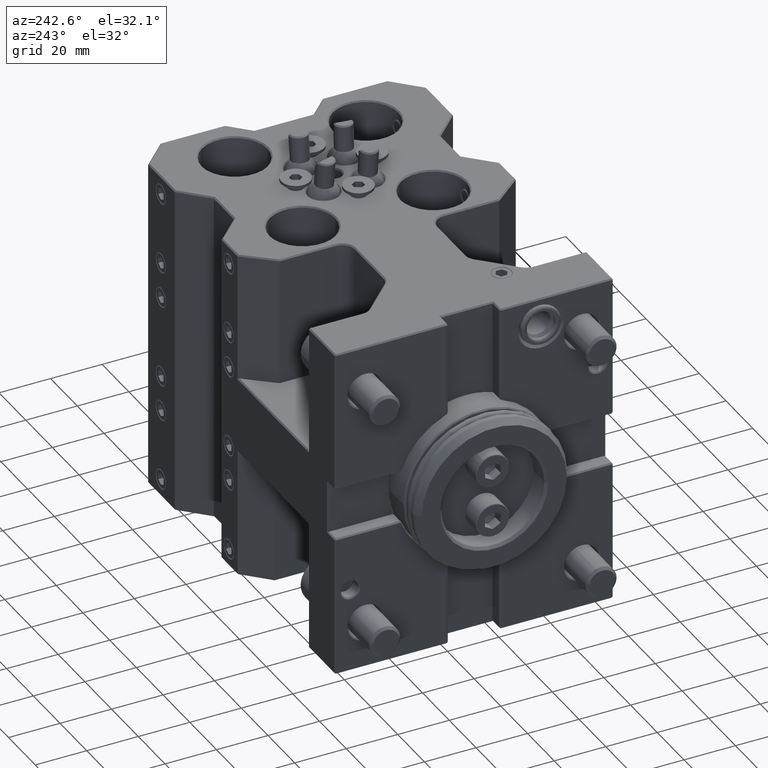
[diagram: clean part render]
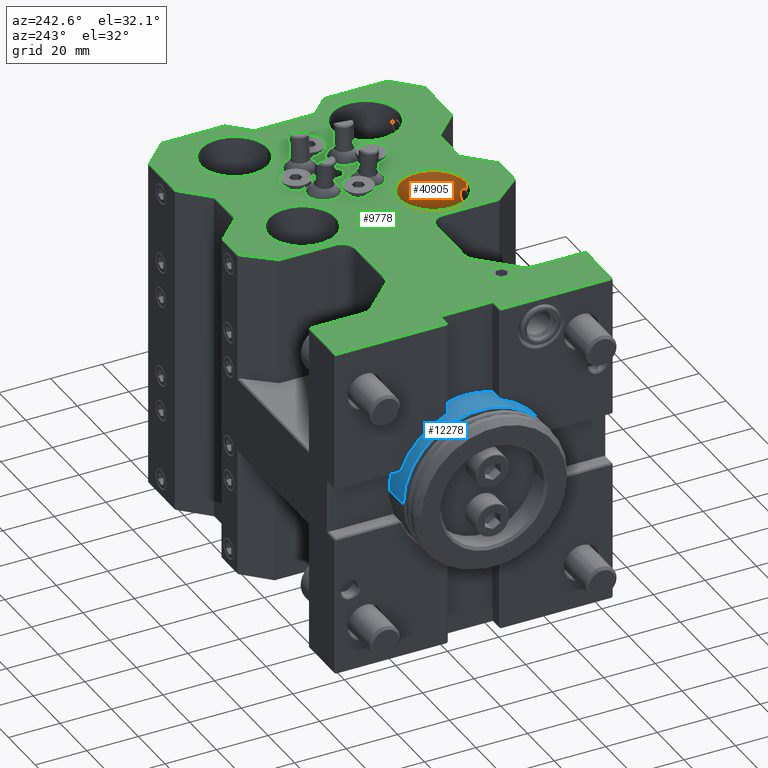
[diagram: same view with three faces highlighted in distinct colors, each labeled with its STEP entity id]
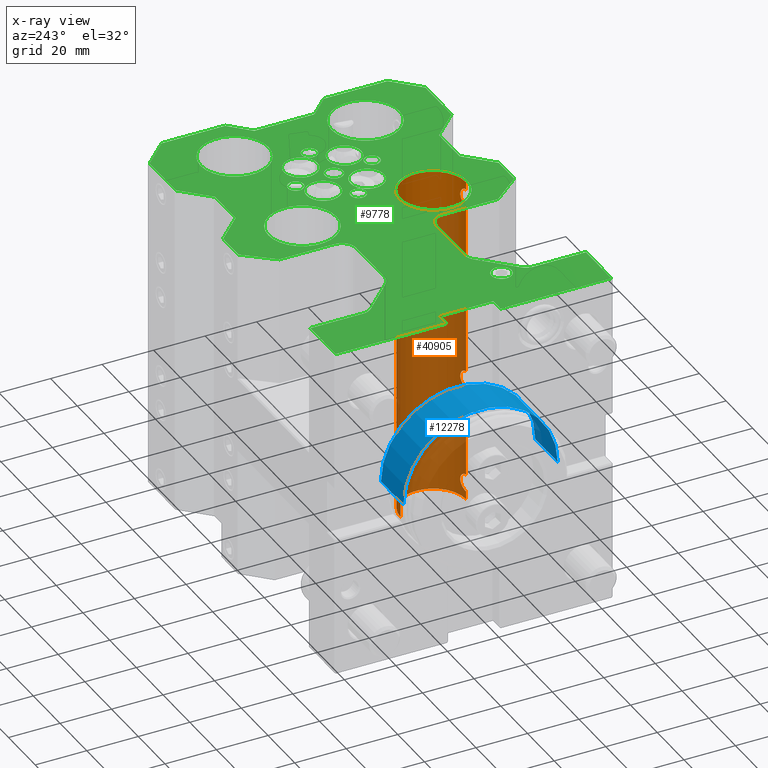
[diagram: x-ray of the same camera — body ghosted, the three highlighted faces saturated]
A machine part, auxiliary view with three faces highlighted in distinct colors.
The next image is the same camera in x-ray (body ghosted, the three faces saturated) — at least one of them is partly hidden behind the body in this view.
Their STEP definitions:

[orange] entity #40905 — the highlighted cylindrical surface (partial cylindrical patch) has radius 12.7 mm, axis along (0, 0, 1).
#210 = CARTESIAN_POINT ( 'NONE',  ( 82.30140180059518684, -37.81002207946755789, -32.07659332867628876 ) ) ;
#428 = VERTEX_POINT ( 'NONE', #27257 ) ;
#530 = CARTESIAN_POINT ( 'NONE',  ( 79.82389812856752087, -38.10000000000127329, -19.40000000000000213 ) ) ;
#624 = DIRECTION ( 'NONE',  ( 0.000000000000000000, 0.000000000000000000, 1.000000000000000000 ) ) ;
#755 = LINE ( 'NONE', #26367, #18602 ) ;
#947 = CARTESIAN_POINT ( 'NONE',  ( 81.30619364034197361, -37.98626871212037059, 32.94938307353269380 ) ) ;
#976 = CARTESIAN_POINT ( 'NONE',  ( 81.69058086895392989, -37.93084094839254305, 13.28205825749488866 ) ) ;
#1213 = CARTESIAN_POINT ( 'NONE',  ( 80.04714149365888431, -38.09404257605719124, 19.37795042470197515 ) ) ;
#1231 = CARTESIAN_POINT ( 'NONE',  ( 82.89040189923100854, -37.66642987198692083, 58.88480762183885275 ) ) ;
#1347 = CARTESIAN_POINT ( 'NONE',  ( 80.48520559040149180, -38.07102194606189016, -61.29038115799193776 ) ) ;
#1470 = CARTESIAN_POINT ( 'NONE',  ( 81.84680323578272976, -37.90069412512288949, 60.56144567282670721 ) ) ;
#1826 = CARTESIAN_POINT ( 'NONE',  ( 82.16213355484730130, -37.83989941511111255, -60.24609392164251176 ) ) ;
#2054 = CARTESIAN_POINT ( 'NONE',  ( 82.30140180064923072, -37.81002207945521576, -60.07659332856888312 ) ) ;
#2095 = CARTESIAN_POINT ( 'NONE',  ( 79.59999999999992326, -25.40000000000127400, 64.50000000000000000 ) ) ;
#2181 = CARTESIAN_POINT ( 'NONE',  ( 79.82457186428375451, -38.10000000000128750, 61.40000000000002700 ) ) ;
#2517 = CARTESIAN_POINT ( 'NONE',  ( 81.84680323540791846, -37.90069412519510195, -27.43855432689488083 ) ) ;
#2526 = AXIS2_PLACEMENT_3D ( 'NONE', #2095, #34457, #30830 ) ;
#2694 = CARTESIAN_POINT ( 'NONE',  ( 80.48520559041317313, -38.07102194606127910, 26.70961884201002690 ) ) ;
#2758 = CARTESIAN_POINT ( 'NONE',  ( 81.10956663647162657, -38.01166181021004320, -26.94535722506029884 ) ) ;
#2995 = CARTESIAN_POINT ( 'NONE',  ( 80.69796522470781497, -38.05414072192936459, -26.77445347899229233 ) ) ;
#3701 = CARTESIAN_POINT ( 'NONE',  ( 80.04587330400620715, -38.09407669315083922, -19.37806911000983234 ) ) ;
#3851 = CARTESIAN_POINT ( 'NONE',  ( 82.16213355488920911, -37.83989941510303368, -32.24609392160692778 ) ) ;
#3949 = CARTESIAN_POINT ( 'NONE',  ( 82.56924468617010859, -37.74927820054085004, -14.28473928909003376 ) ) ;
#3980 = ORIENTED_EDGE ( 'NONE', *, *, #44558, .T. ) ;
#4173 = CARTESIAN_POINT ( 'NONE',  ( 80.48520559082351156, -38.07102194603974255, 54.70961884213005533 ) ) ;
#4186 = CARTESIAN_POINT ( 'NONE',  ( 82.99460831954220907, -37.63792320186925622, -15.77747626053777452 ) ) ;
#4382 = CARTESIAN_POINT ( 'NONE',  ( 82.89052325897102946, -37.66639762300366101, 15.11548947222700612 ) ) ;
#4481 = CARTESIAN_POINT ( 'NONE',  ( 79.59999999999986642, -38.10000000000128040, 54.59999999999999432 ) ) ;
#4614 = CARTESIAN_POINT ( 'NONE',  ( 82.31700784693350670, -37.81006776459199159, 18.09147218538689827 ) ) ;
#4871 = CARTESIAN_POINT ( 'NONE',  ( 81.10956663611429462, -38.01166181024692037, 19.05464277504610138 ) ) ;
#4884 = CARTESIAN_POINT ( 'NONE',  ( 82.31700784487934186, -37.81006776498788469, 60.09147218687508740 ) ) ;
#5116 = CARTESIAN_POINT ( 'NONE',  ( 82.82572589015836684, -37.68383423891022233, 56.90226863073272767 ) ) ;
#5238 = ORIENTED_EDGE ( 'NONE', *, *, #23737, .F. ) ;
#5455 = CARTESIAN_POINT ( 'NONE',  ( 83.00006573156261425, -37.63640278128272598, -57.88924376395209492 ) ) ;
#5701 = AXIS2_PLACEMENT_3D ( 'NONE', #33356, #8236, #34296 ) ;
#5838 = EDGE_CURVE ( 'NONE', #40938, #6015, #29981, .T. ) ;
#6015 = VERTEX_POINT ( 'NONE', #15264 ) ;
#6173 = CARTESIAN_POINT ( 'NONE',  ( 79.82457186428753459, -38.10000000000126619, -54.59999999999999432 ) ) ;
#6552 = CARTESIAN_POINT ( 'NONE',  ( 82.89040189905733769, -37.66642987203417192, 30.88480762249749745 ) ) ;
#6611 = CARTESIAN_POINT ( 'NONE',  ( 82.31700784562866602, -37.81006776484347398, -27.90852781368147717 ) ) ;
#6660 = VERTEX_POINT ( 'NONE', #29148 ) ;
#6687 = CARTESIAN_POINT ( 'NONE',  ( 79.59999999999992326, -25.40000000000127400, -65.00000000000000000 ) ) ;
#7019 = CARTESIAN_POINT ( 'NONE',  ( 82.82550202451615462, -37.68388815522314417, 31.09806093965384477 ) ) ;
#7169 = CYLINDRICAL_SURFACE ( 'NONE', #16010, 12.69999999999999574 ) ;
#7225 = CARTESIAN_POINT ( 'NONE',  ( 80.70055856114932169, -38.05390537446147192, -33.22461353637268644 ) ) ;
#7275 = EDGE_CURVE ( 'NONE', #14811, #16153, #39837, .T. ) ;
#7318 = CARTESIAN_POINT ( 'NONE',  ( 81.84680323540763425, -37.90069412519516590, -13.43855432687883855 ) ) ;
#7462 = CARTESIAN_POINT ( 'NONE',  ( 80.04587330410808477, -38.09407669314548883, -33.37806910997050380 ) ) ;
#7552 = CARTESIAN_POINT ( 'NONE',  ( 80.70055856122124283, -38.05390537445403965, -19.22461353634566095 ) ) ;
#7757 = CARTESIAN_POINT ( 'NONE',  ( 80.48520558984935747, -38.07102194609087320, 12.70961884177643419 ) ) ;
#7947 = ORIENTED_EDGE ( 'NONE', *, *, #5838, .T. ) ;
#8236 = DIRECTION ( 'NONE',  ( 0.000000000000000000, -0.000000000000000000, -1.000000000000000000 ) ) ;
#8460 = CARTESIAN_POINT ( 'NONE',  ( 82.16213355470557644, -37.83989941513845423, 13.75390607817749178 ) ) ;
#9509 = CARTESIAN_POINT ( 'NONE',  ( 79.59999999999986642, -38.10000000000128040, 33.39999999999999858 ) ) ;
#9521 = EDGE_CURVE ( 'NONE', #18318, #22192, #17255, .T. ) ;
#9542 = CARTESIAN_POINT ( 'NONE',  ( 82.65357650381795906, -37.72775574315163283, -59.51193555298297611 ) ) ;
#9780 = CARTESIAN_POINT ( 'NONE',  ( 82.82550202486110891, -37.68388815513512213, -56.90193906103523602 ) ) ;
#10075 = FACE_OUTER_BOUND ( 'NONE', #15915, .T. ) ;
#10168 = CARTESIAN_POINT ( 'NONE',  ( 82.95587862762545228, -37.64861585046991621, 30.55719764081590029 ) ) ;
#10696 = CARTESIAN_POINT ( 'NONE',  ( 82.97798501526365555, -37.64260067143069932, -16.44627773334997300 ) ) ;
#10792 = LINE ( 'NONE', #36829, #34509 ) ;
#10948 = CARTESIAN_POINT ( 'NONE',  ( 82.82550202457102273, -37.68388815520913937, -14.90193906048763850 ) ) ;
#11082 = CARTESIAN_POINT ( 'NONE',  ( 79.59999999999986642, -38.10000000000128040, -65.00000000000000000 ) ) ;
#11127 = CARTESIAN_POINT ( 'NONE',  ( 79.82389812858399125, -38.10000000000127329, 26.59999999999999787 ) ) ;
#11188 = CARTESIAN_POINT ( 'NONE',  ( 81.67753958974543593, -37.93032665515935520, -13.29930671625609762 ) ) ;
#11619 = CARTESIAN_POINT ( 'NONE',  ( 82.54973084753245871, -37.75335208063813042, 14.29443788585075659 ) ) ;
#11754 = CARTESIAN_POINT ( 'NONE',  ( 79.82389812858566813, -38.10000000000128040, -61.40000000000001990 ) ) ;
#11818 = LINE ( 'NONE', #40967, #12819 ) ;
#11837 = CARTESIAN_POINT ( 'NONE',  ( 81.67753958997472807, -37.93032665512481572, 32.70069328363229033 ) ) ;
#12081 = ORIENTED_EDGE ( 'NONE', *, *, #41004, .T. ) ;
#12093 = CARTESIAN_POINT ( 'NONE',  ( 81.84680323475549812, -37.90069412532087512, 18.56144567357086217 ) ) ;
#12495 = ORIENTED_EDGE ( 'NONE', *, *, #31894, .T. ) ;
#12542 = CARTESIAN_POINT ( 'NONE',  ( 79.59999999999986642, -38.10000000000128040, -19.40000000000000213 ) ) ;
#12572 = CARTESIAN_POINT ( 'NONE',  ( 79.59999999999986642, -38.10000000000128040, 12.59999999999999964 ) ) ;
#12696 = CARTESIAN_POINT ( 'NONE',  ( 82.97263428907882599, -37.64399721864083403, -57.55485347735881163 ) ) ;
#12817 = CARTESIAN_POINT ( 'NONE',  ( 80.04714149362722253, -38.09404257605886812, 61.37795042470202134 ) ) ;
#12819 = VECTOR ( 'NONE', #34477, 1000.000000000000000 ) ;
#13019 = VERTEX_POINT ( 'NONE', #44690 ) ;
#13164 = CARTESIAN_POINT ( 'NONE',  ( 81.30619364038254560, -37.98626871211429545, -55.05061692650245675 ) ) ;
#13387 = EDGE_CURVE ( 'NONE', #13019, #23270, #45741, .T. ) ;
#13457 = CARTESIAN_POINT ( 'NONE',  ( 79.59999999999986642, -38.10000000000128040, 19.40000000000000213 ) ) ;
#13791 = CARTESIAN_POINT ( 'NONE',  ( 82.97798501525517167, -37.64260067143300148, 29.55372226656006163 ) ) ;
#13996 = CARTESIAN_POINT ( 'NONE',  ( 79.59999999999986642, -38.10000000000128040, -33.39999999999999858 ) ) ;
#14274 = ORIENTED_EDGE ( 'NONE', *, *, #13387, .T. ) ;
#14553 = CARTESIAN_POINT ( 'NONE',  ( 82.89052325895676177, -37.66639762300757610, -16.88451052803863561 ) ) ;
#14701 = CARTESIAN_POINT ( 'NONE',  ( 81.31611134325852674, -37.99028051104575354, -32.96859226872768289 ) ) ;
#14811 = VERTEX_POINT ( 'NONE', #12542 ) ;
#15259 = CARTESIAN_POINT ( 'NONE',  ( 82.31700784562922024, -37.81006776484336029, -13.90852781371343383 ) ) ;
#15264 = CARTESIAN_POINT ( 'NONE',  ( 79.59999999999986642, -38.10000000000128040, -26.60000000000000497 ) ) ;
#15336 = ORIENTED_EDGE ( 'NONE', *, *, #17021, .T. ) ;
#15472 = CARTESIAN_POINT ( 'NONE',  ( 82.99986758693411559, -37.63645783755012530, 15.77408538715516606 ) ) ;
#15711 = CARTESIAN_POINT ( 'NONE',  ( 82.30140180074732825, -37.81002207943282656, 13.92340667160822676 ) ) ;
#15915 = EDGE_LOOP ( 'NONE', ( #5238, #14274, #30630, #12495, #12081, #7947, #30380, #31620, #40554, #16430, #17470, #24512, #15336, #3980, #41449, #28590 ) ) ;
#15950 = CARTESIAN_POINT ( 'NONE',  ( 79.82457186431550156, -38.10000000000127329, 19.40000000000000213 ) ) ;
#16010 = AXIS2_PLACEMENT_3D ( 'NONE', #6687, #17556, #47646 ) ;
#16153 = VERTEX_POINT ( 'NONE', #36471 ) ;
#16237 = DIRECTION ( 'NONE',  ( 0.000000000000000000, 0.000000000000000000, 1.000000000000000000 ) ) ;
#16313 = CARTESIAN_POINT ( 'NONE',  ( 82.56924468558980834, -37.74927820068894135, -56.28473928799488846 ) ) ;
#16430 = ORIENTED_EDGE ( 'NONE', *, *, #18293, .T. ) ;
#16517 = CARTESIAN_POINT ( 'NONE',  ( 80.04714149340512108, -38.09404257607054234, 33.37795042470196449 ) ) ;
#16533 = EDGE_CURVE ( 'NONE', #36893, #18318, #46986, .T. ) ;
#16665 = CARTESIAN_POINT ( 'NONE',  ( 82.65357650390825484, -37.72775574312860414, 56.48806444725084930 ) ) ;
#16774 = CARTESIAN_POINT ( 'NONE',  ( 81.67753958993408503, -37.93032665513093349, -55.29930671633251649 ) ) ;
#16905 = CARTESIAN_POINT ( 'NONE',  ( 82.99460831955283879, -37.63792320186627904, 58.22252373951407378 ) ) ;
#17021 = EDGE_CURVE ( 'NONE', #22192, #26231, #23483, .T. ) ;
#17168 = DIRECTION ( 'NONE',  ( 0.000000000000000000, 0.000000000000000000, 1.000000000000000000 ) ) ;
#17240 = CARTESIAN_POINT ( 'NONE',  ( 81.67753958968205552, -37.93032665516890489, -27.29930671622954819 ) ) ;
#17255 = B_SPLINE_CURVE_WITH_KNOTS ( 'NONE', 3,
 ( #44140, #11127, #21029, #2694, #17417, #21490, #32116, #36198, #32597, #47268, #39587, #46798, #21731, #13791, #28996, #25359, #28513, #43181, #10168, #6552, #7019, #37853, #19555, #41450, #11837, #947, #26072, #37155, #27609, #16517, #31946, #9509 ),
 .UNSPECIFIED., .F., .F.,
 ( 4, 2, 2, 2, 2, 2, 2, 2, 2, 2, 2, 2, 2, 2, 2, 4 ),
 ( 0.000000000000000000, 0.06250000000000058287, 0.1250000000000011657, 0.2500000000000023315, 0.3125000000000030531, 0.3750000000000037192, 0.4375000000000044409, 0.5000000000000051070, 0.5312500000000045519, 0.5625000000000038858, 0.6250000000000024425, 0.7500000000000016653, 0.8125000000000012212, 0.8750000000000007772, 0.9375000000000004441, 1.000000000000000000 ),
 .UNSPECIFIED. ) ;
#17412 = LINE ( 'NONE', #28274, #32440 ) ;
#17417 = CARTESIAN_POINT ( 'NONE',  ( 80.70055856121084048, -38.05390537445512678, 26.77538646363152708 ) ) ;
#17470 = ORIENTED_EDGE ( 'NONE', *, *, #16533, .T. ) ;
#17556 = DIRECTION ( 'NONE',  ( 0.000000000000000000, 0.000000000000000000, 1.000000000000000000 ) ) ;
#17848 = CARTESIAN_POINT ( 'NONE',  ( 82.97798501525201686, -37.64260067143384703, -30.44627773372566537 ) ) ;
#18058 = VERTEX_POINT ( 'NONE', #21051 ) ;
#18185 = CARTESIAN_POINT ( 'NONE',  ( 82.89040189919623458, -37.66642987199637815, -15.11519237784774106 ) ) ;
#18293 = EDGE_CURVE ( 'NONE', #40859, #36893, #23879, .T. ) ;
#18318 = VERTEX_POINT ( 'NONE', #20997 ) ;
#18422 = CARTESIAN_POINT ( 'NONE',  ( 81.69058086921575068, -37.93084094834204478, -18.71794174224752538 ) ) ;
#18445 = VECTOR ( 'NONE', #42002, 1000.000000000000000 ) ;
#18572 = CARTESIAN_POINT ( 'NONE',  ( 82.54973084768467118, -37.75335208060341330, -31.70556211386461953 ) ) ;
#18602 = VECTOR ( 'NONE', #26839, 1000.000000000000000 ) ;
#18660 = CARTESIAN_POINT ( 'NONE',  ( 80.48767786835455240, -38.07085949887547827, -12.71024787649016119 ) ) ;
#18888 = CARTESIAN_POINT ( 'NONE',  ( 80.70055856096841751, -38.05390537448015920, 54.77538646348116202 ) ) ;
#19101 = CARTESIAN_POINT ( 'NONE',  ( 83.00006573156107947, -37.63640278128315231, 16.11075623606556917 ) ) ;
#19340 = CARTESIAN_POINT ( 'NONE',  ( 82.82550202475930234, -37.68388815516109247, 17.09806093901935498 ) ) ;
#19555 = CARTESIAN_POINT ( 'NONE',  ( 82.31700784598237419, -37.81006776477532583, 32.09147218596502427 ) ) ;
#19584 = CARTESIAN_POINT ( 'NONE',  ( 80.69796522506518954, -38.05414072189248742, 19.22554652090130034 ) ) ;
#19599 = CARTESIAN_POINT ( 'NONE',  ( 82.95587862753862396, -37.64861585049353465, 58.55719764114505210 ) ) ;
#19741 = EDGE_CURVE ( 'NONE', #16153, #40859, #11818, .T. ) ;
#19942 = CARTESIAN_POINT ( 'NONE',  ( 82.82572589024871945, -37.68383423888717232, -59.09773136903329771 ) ) ;
#20171 = CARTESIAN_POINT ( 'NONE',  ( 82.95587862770911158, -37.64861585044715753, -57.44280235945762314 ) ) ;
#20300 = CARTESIAN_POINT ( 'NONE',  ( 82.89052325897110052, -37.66639762300367522, 57.11548947227134931 ) ) ;
#20409 = CARTESIAN_POINT ( 'NONE',  ( 82.89040189888996224, -37.66642987207971061, -57.11519237695533491 ) ) ;
#20611 = CARTESIAN_POINT ( 'NONE',  ( 81.30619364063454668, -37.98626871207631694, -27.05061692660535400 ) ) ;
#20997 = CARTESIAN_POINT ( 'NONE',  ( 79.59999999999986642, -38.10000000000128040, 26.59999999999999787 ) ) ;
#21029 = CARTESIAN_POINT ( 'NONE',  ( 80.04587330390435795, -38.09407669315617539, 26.62193088996656343 ) ) ;
#21051 = CARTESIAN_POINT ( 'NONE',  ( 79.59999999999986642, -38.10000000000128040, 64.50000000000000000 ) ) ;
#21490 = CARTESIAN_POINT ( 'NONE',  ( 81.31611134313564548, -37.99028051105847226, 27.03140773126374086 ) ) ;
#21731 = CARTESIAN_POINT ( 'NONE',  ( 82.89052325896533091, -37.66639762300523842, 29.11548947205114146 ) ) ;
#21890 = CARTESIAN_POINT ( 'NONE',  ( 79.59999999999986642, -38.10000000000128040, -33.39999999999999858 ) ) ;
#22038 = CARTESIAN_POINT ( 'NONE',  ( 82.30140180073260581, -37.81002207943620874, -18.07659332834790433 ) ) ;
#22181 = CARTESIAN_POINT ( 'NONE',  ( 81.69058086858670720, -37.93084094846334864, -32.71794174293612656 ) ) ;
#22192 = VERTEX_POINT ( 'NONE', #40569 ) ;
#22270 = CARTESIAN_POINT ( 'NONE',  ( 79.59999999999986642, -38.10000000000128040, -19.40000000000000213 ) ) ;
#22719 = CARTESIAN_POINT ( 'NONE',  ( 82.65357650390727429, -37.72775574312883862, 14.48806444729003218 ) ) ;
#22736 = CARTESIAN_POINT ( 'NONE',  ( 81.69058086861525680, -37.93084094845784193, 55.28205825709273569 ) ) ;
#22949 = CARTESIAN_POINT ( 'NONE',  ( 82.89040189895628430, -37.66642987206166282, 16.88480762269286117 ) ) ;
#23185 = CARTESIAN_POINT ( 'NONE',  ( 82.97798501524937365, -37.64260067143455757, 15.55372226638419519 ) ) ;
#23270 = VERTEX_POINT ( 'NONE', #24717 ) ;
#23409 = B_SPLINE_CURVE_WITH_KNOTS ( 'NONE', 3,
 ( #26474, #11754, #34414, #1347, #41140, #27887, #38476, #1826, #2054, #31259, #9542, #19942, #45934, #24274, #23781, #5455, #31730, #12696, #20171, #20409, #9780, #16313, #28129, #35121, #16774, #13164, #41855, #23557, #34885, #38245, #6173, #42564 ),
 .UNSPECIFIED., .F., .F.,
 ( 4, 2, 2, 2, 2, 2, 2, 2, 2, 2, 2, 2, 2, 2, 2, 4 ),
 ( 0.000000000000000000, 0.06249999999999926448, 0.1249999999999985290, 0.2500000000000006106, 0.3125000000000008882, 0.3750000000000011102, 0.4375000000000013878, 0.5000000000000016653, 0.5312500000000017764, 0.5625000000000017764, 0.6250000000000014433, 0.7499999999999992228, 0.8124999999999994449, 0.8749999999999995559, 0.9374999999999997780, 1.000000000000000000 ),
 .UNSPECIFIED. ) ;
#23483 = LINE ( 'NONE', #37935, #45792 ) ;
#23557 = CARTESIAN_POINT ( 'NONE',  ( 80.69796522485438572, -38.05414072191423003, -54.77445347905081974 ) ) ;
#23675 = CARTESIAN_POINT ( 'NONE',  ( 83.00006573156089473, -37.63640278128319494, 58.11075623580331495 ) ) ;
#23737 = EDGE_CURVE ( 'NONE', #13019, #428, #17412, .T. ) ;
#23781 = CARTESIAN_POINT ( 'NONE',  ( 82.99986758693104605, -37.63645783755099927, -58.22591461280940450 ) ) ;
#23839 = VERTEX_POINT ( 'NONE', #47265 ) ;
#23879 = B_SPLINE_CURVE_WITH_KNOTS ( 'NONE', 3,
 ( #12572, #40777, #29949, #7757, #33574, #45329, #976, #8460, #15711, #11619, #22719, #37400, #4382, #23185, #15472, #19101, #30186, #41245, #44860, #22949, #19340, #37634, #4614, #12093, #37882, #26814, #4871, #19584, #34281, #1213, #15950, #30659 ),
 .UNSPECIFIED., .F., .F.,
 ( 4, 2, 2, 2, 2, 2, 2, 2, 2, 2, 2, 2, 2, 2, 2, 4 ),
 ( 0.000000000000000000, 0.06250000000000083267, 0.1250000000000016653, 0.2500000000000033307, 0.3125000000000040523, 0.3750000000000047740, 0.4375000000000054956, 0.5000000000000062172, 0.5312500000000061062, 0.5625000000000058842, 0.6250000000000059952, 0.7500000000000038858, 0.8125000000000028866, 0.8750000000000019984, 0.9375000000000009992, 1.000000000000000000 ),
 .UNSPECIFIED. ) ;
#24162 = CARTESIAN_POINT ( 'NONE',  ( 82.30140180064555011, -37.81002207945608262, 55.92340667140567234 ) ) ;
#24198 = LINE ( 'NONE', #31898, #18445 ) ;
#24244 = CARTESIAN_POINT ( 'NONE',  ( 82.56924468588108823, -37.74927820061461858, -28.28473928858603870 ) ) ;
#24274 = CARTESIAN_POINT ( 'NONE',  ( 82.97798501524638937, -37.64260067143538890, -58.44627773345822419 ) ) ;
#24512 = ORIENTED_EDGE ( 'NONE', *, *, #9521, .T. ) ;
#24717 = CARTESIAN_POINT ( 'NONE',  ( 79.59999999999986642, -38.10000000000128040, -64.49999999999997158 ) ) ;
#24971 = CARTESIAN_POINT ( 'NONE',  ( 82.89040189903607825, -37.66642987203995574, -29.11519237736410659 ) ) ;
#25100 = CARTESIAN_POINT ( 'NONE',  ( 82.82572589014276332, -37.68383423891418715, -31.09773136926614256 ) ) ;
#25190 = CARTESIAN_POINT ( 'NONE',  ( 83.00006573155377509, -37.63640278128519157, -15.88924376423117302 ) ) ;
#25359 = CARTESIAN_POINT ( 'NONE',  ( 83.00006573155816625, -37.63640278128395522, 30.11075623592359918 ) ) ;
#25903 = CARTESIAN_POINT ( 'NONE',  ( 80.69796522464869781, -38.05414072193548236, -12.77445347896770222 ) ) ;
#26072 = CARTESIAN_POINT ( 'NONE',  ( 81.10956663661914945, -38.01166181019481627, 33.05464277489429037 ) ) ;
#26129 = CARTESIAN_POINT ( 'NONE',  ( 81.10956663653077214, -38.01166181020393964, -12.94535722508490494 ) ) ;
#26231 = VERTEX_POINT ( 'NONE', #4481 ) ;
#26367 = CARTESIAN_POINT ( 'NONE',  ( 79.59999999999986642, -38.10000000000128040, -65.00000000000000000 ) ) ;
#26474 = CARTESIAN_POINT ( 'NONE',  ( 79.59999999999986642, -38.10000000000128040, -61.40000000000000568 ) ) ;
#26814 = CARTESIAN_POINT ( 'NONE',  ( 81.30619364069855237, -37.98626871206668909, 18.94938307332583349 ) ) ;
#26839 = DIRECTION ( 'NONE',  ( 0.000000000000000000, 0.000000000000000000, 1.000000000000000000 ) ) ;
#27067 = CARTESIAN_POINT ( 'NONE',  ( 82.16213355487489878, -37.83989941510579058, 55.75390607837872636 ) ) ;
#27257 = CARTESIAN_POINT ( 'NONE',  ( 79.59999999999996589, -12.70000000000127649, 64.50000000000000000 ) ) ;
#27301 = CARTESIAN_POINT ( 'NONE',  ( 82.97263428907629645, -37.64399721864152326, 58.44514652227439200 ) ) ;
#27609 = CARTESIAN_POINT ( 'NONE',  ( 80.48767786837008487, -38.07085949887465404, 33.28975212350984236 ) ) ;
#27887 = CARTESIAN_POINT ( 'NONE',  ( 81.31611134351460635, -37.99028051101929293, -60.96859226858430247 ) ) ;
#27952 = EDGE_CURVE ( 'NONE', #6015, #14811, #24198, .T. ) ;
#28096 = CARTESIAN_POINT ( 'NONE',  ( 80.04714149348444607, -38.09404257606637145, -26.62204957529803906 ) ) ;
#28129 = CARTESIAN_POINT ( 'NONE',  ( 82.31700784607021149, -37.81006776475837938, -55.90852781411002326 ) ) ;
#28274 = CARTESIAN_POINT ( 'NONE',  ( 79.59999999999996589, -12.70000000000127649, -65.00000000000000000 ) ) ;
#28513 = CARTESIAN_POINT ( 'NONE',  ( 82.99460831954873186, -37.63792320186743012, 30.22252373969443440 ) ) ;
#28577 = CARTESIAN_POINT ( 'NONE',  ( 82.82550202471547607, -37.68388815517226931, -28.90193906073962893 ) ) ;
#28590 = ORIENTED_EDGE ( 'NONE', *, *, #39613, .T. ) ;
#28958 = CARTESIAN_POINT ( 'NONE',  ( 82.99460831955092033, -37.63792320186681195, -29.77747626034066997 ) ) ;
#28996 = CARTESIAN_POINT ( 'NONE',  ( 82.99986758693994204, -37.63645783754851237, 29.77408538743909361 ) ) ;
#29148 = CARTESIAN_POINT ( 'NONE',  ( 79.59999999999986642, -38.10000000000128040, -54.60000000000000142 ) ) ;
#29277 = CARTESIAN_POINT ( 'NONE',  ( 82.16213355457469447, -37.83989941516369981, -18.24609392195113955 ) ) ;
#29520 = CARTESIAN_POINT ( 'NONE',  ( 81.31611134311475553, -37.99028051106062520, -18.96859226878186888 ) ) ;
#29731 = CARTESIAN_POINT ( 'NONE',  ( 79.82389812877568147, -38.10000000000127329, 54.60000000000000853 ) ) ;
#29949 = CARTESIAN_POINT ( 'NONE',  ( 80.04587330446818783, -38.09407669312659550, 12.62193089020016679 ) ) ;
#29978 = CARTESIAN_POINT ( 'NONE',  ( 81.30619364057118048, -37.98626871208588085, -13.05061692657890404 ) ) ;
#29981 = B_SPLINE_CURVE_WITH_KNOTS ( 'NONE', 3,
 ( #13996, #40489, #7462, #47700, #7225, #14701, #22181, #3851, #210, #18572, #44337, #25100, #39784, #17848, #32561, #47238, #28958, #36267, #39411, #24971, #28577, #24244, #6611, #2517, #17240, #20611, #2758, #2995, #43490, #28096, #42768, #35568 ),
 .UNSPECIFIED., .F., .F.,
 ( 4, 2, 2, 2, 2, 2, 2, 2, 2, 2, 2, 2, 2, 2, 2, 4 ),
 ( 0.000000000000000000, 0.06249999999999777955, 0.1249999999999955591, 0.2499999999999945044, 0.3124999999999947820, 0.3749999999999950595, 0.4374999999999953371, 0.4999999999999956701, 0.5312499999999963363, 0.5624999999999970024, 0.6249999999999973355, 0.7499999999999964473, 0.8124999999999973355, 0.8749999999999982236, 0.9374999999999991118, 1.000000000000000000 ),
 .UNSPECIFIED. ) ;
#30186 = CARTESIAN_POINT ( 'NONE',  ( 82.99460831955308038, -37.63792320186622931, 16.22252373990739116 ) ) ;
#30380 = ORIENTED_EDGE ( 'NONE', *, *, #27952, .T. ) ;
#30630 = ORIENTED_EDGE ( 'NONE', *, *, #46217, .T. ) ;
#30659 = CARTESIAN_POINT ( 'NONE',  ( 79.59999999999986642, -38.10000000000128040, 19.40000000000000213 ) ) ;
#30830 = DIRECTION ( 'NONE',  ( -3.278217592397117045E-15, -1.000000000000000000, 0.000000000000000000 ) ) ;
#30911 = CARTESIAN_POINT ( 'NONE',  ( 81.67753958928634006, -37.93032665522852653, 60.70069328400930431 ) ) ;
#31149 = CARTESIAN_POINT ( 'NONE',  ( 81.10956663599574767, -38.01166181025915591, 61.05464277506361270 ) ) ;
#31259 = CARTESIAN_POINT ( 'NONE',  ( 82.54973084763059887, -37.75335208061574122, -59.70556211397209978 ) ) ;
#31380 = CARTESIAN_POINT ( 'NONE',  ( 81.30619364103050373, -37.98626871201668109, 60.94938307315547377 ) ) ;
#31617 = CARTESIAN_POINT ( 'NONE',  ( 82.82550202428355135, -37.68388815528248159, 59.09806093997627841 ) ) ;
#31620 = ORIENTED_EDGE ( 'NONE', *, *, #7275, .T. ) ;
#31730 = CARTESIAN_POINT ( 'NONE',  ( 82.99460831955538254, -37.63792320186556140, -57.77747626011913695 ) ) ;
#31894 = EDGE_CURVE ( 'NONE', #23839, #6660, #23409, .T. ) ;
#31898 = CARTESIAN_POINT ( 'NONE',  ( 79.59999999999986642, -38.10000000000128040, -65.00000000000000000 ) ) ;
#31946 = CARTESIAN_POINT ( 'NONE',  ( 79.82457186406134042, -38.10000000000126619, 33.39999999999998437 ) ) ;
#32116 = CARTESIAN_POINT ( 'NONE',  ( 81.69058086915553929, -37.93084094835365505, 27.28205825763178538 ) ) ;
#32268 = CARTESIAN_POINT ( 'NONE',  ( 79.59999999999986642, -38.10000000000128040, -65.00000000000000000 ) ) ;
#32440 = VECTOR ( 'NONE', #17168, 1000.000000000000000 ) ;
#32561 = CARTESIAN_POINT ( 'NONE',  ( 82.99986758693701461, -37.63645783754933660, -30.22591461251398925 ) ) ;
#32594 = CIRCLE ( 'NONE', #2526, 12.69999999999999574 ) ;
#32597 = CARTESIAN_POINT ( 'NONE',  ( 82.30140180082298684, -37.81002207941556037, 27.92340667180302205 ) ) ;
#32784 = DIRECTION ( 'NONE',  ( 0.000000000000000000, 0.000000000000000000, 1.000000000000000000 ) ) ;
#32890 = CARTESIAN_POINT ( 'NONE',  ( 79.82457186407700078, -38.10000000000127329, -12.59999999999999964 ) ) ;
#33125 = CARTESIAN_POINT ( 'NONE',  ( 82.65357650380106236, -37.72775574315595293, -17.51193555304564597 ) ) ;
#33356 = CARTESIAN_POINT ( 'NONE',  ( 79.59999999999992326, -25.40000000000127400, -64.49999999999997158 ) ) ;
#33574 = CARTESIAN_POINT ( 'NONE',  ( 80.70055856125453886, -38.05390537445060062, 12.77538646364972053 ) ) ;
#33592 = CARTESIAN_POINT ( 'NONE',  ( 81.31611134362032089, -37.99028051100837189, 55.03140773156441412 ) ) ;
#33608 = CARTESIAN_POINT ( 'NONE',  ( 82.97263428906562410, -37.64399721864445070, -15.55485347777743854 ) ) ;
#34281 = CARTESIAN_POINT ( 'NONE',  ( 80.48767786811637848, -38.07085949888800513, 19.28975212350983881 ) ) ;
#34296 = DIRECTION ( 'NONE',  ( -3.278217592397117045E-15, -1.000000000000000000, 0.000000000000000000 ) ) ;
#34297 = CARTESIAN_POINT ( 'NONE',  ( 82.97798501524937365, -37.64260067143457178, 57.55372226633986799 ) ) ;
#34414 = CARTESIAN_POINT ( 'NONE',  ( 80.04587330391605349, -38.09407669315556433, -61.37806911003147547 ) ) ;
#34457 = DIRECTION ( 'NONE',  ( 0.000000000000000000, 0.000000000000000000, 1.000000000000000000 ) ) ;
#34477 = DIRECTION ( 'NONE',  ( 0.000000000000000000, 0.000000000000000000, 1.000000000000000000 ) ) ;
#34509 = VECTOR ( 'NONE', #624, 1000.000000000000000 ) ;
#34538 = CARTESIAN_POINT ( 'NONE',  ( 82.56924468674505135, -37.74927820039415849, 59.71526070998186242 ) ) ;
#34771 = CARTESIAN_POINT ( 'NONE',  ( 79.59999999999986642, -38.10000000000128040, 61.40000000000001279 ) ) ;
#34885 = CARTESIAN_POINT ( 'NONE',  ( 80.48767786814424596, -38.07085949888652721, -54.71024787649015764 ) ) ;
#35121 = CARTESIAN_POINT ( 'NONE',  ( 81.84680323518719547, -37.90069412523766346, -55.43855432668062377 ) ) ;
#35568 = CARTESIAN_POINT ( 'NONE',  ( 79.59999999999986642, -38.10000000000128040, -26.60000000000000497 ) ) ;
#36198 = CARTESIAN_POINT ( 'NONE',  ( 82.16213355460473622, -37.83989941515788047, 27.75390607810918553 ) ) ;
#36261 = CARTESIAN_POINT ( 'NONE',  ( 82.82572589026561616, -37.68383423888285222, -17.09773136897057455 ) ) ;
#36267 = CARTESIAN_POINT ( 'NONE',  ( 82.97263428907437799, -37.64399721864204906, -29.55485347758031978 ) ) ;
#36471 = CARTESIAN_POINT ( 'NONE',  ( 79.59999999999986642, -38.10000000000128040, -12.59999999999999964 ) ) ;
#36829 = CARTESIAN_POINT ( 'NONE',  ( 79.59999999999986642, -38.10000000000128040, -65.00000000000000000 ) ) ;
#36893 = VERTEX_POINT ( 'NONE', #13457 ) ;
#36978 = CARTESIAN_POINT ( 'NONE',  ( 80.48520559031132393, -38.07102194606660106, -19.29038115801356312 ) ) ;
#37155 = CARTESIAN_POINT ( 'NONE',  ( 80.69796522456033472, -38.05414072194458441, 33.22554652105309714 ) ) ;
#37400 = CARTESIAN_POINT ( 'NONE',  ( 82.82572589015936160, -37.68383423890993811, 14.90226863069376684 ) ) ;
#37634 = CARTESIAN_POINT ( 'NONE',  ( 82.56924468579347831, -37.74927820063698647, 17.71526071189597218 ) ) ;
#37853 = CARTESIAN_POINT ( 'NONE',  ( 82.56924468627983060, -37.74927820051289729, 31.71526071062704588 ) ) ;
#37882 = CARTESIAN_POINT ( 'NONE',  ( 81.67753958961810667, -37.93032665517855406, 18.70069328383916840 ) ) ;
#37935 = CARTESIAN_POINT ( 'NONE',  ( 79.59999999999986642, -38.10000000000128040, -65.00000000000000000 ) ) ;
#38058 = B_SPLINE_CURVE_WITH_KNOTS ( 'NONE', 3,
 ( #44641, #29731, #41028, #4173, #18888, #33592, #22736, #27067, #24162, #38134, #16665, #5116, #20300, #34297, #42204, #23675, #16905, #27301, #19599, #1231, #31617, #34538, #4884, #1470, #30911, #31380, #31149, #45826, #38365, #12817, #2181, #34771 ),
 .UNSPECIFIED., .F., .F.,
 ( 4, 2, 2, 2, 2, 2, 2, 2, 2, 2, 2, 2, 2, 2, 2, 4 ),
 ( 0.000000000000000000, 0.06250000000000092981, 0.1250000000000018596, 0.2499999999999993894, 0.3124999999999996669, 0.3749999999999998890, 0.4375000000000001665, 0.5000000000000004441, 0.5312500000000005551, 0.5625000000000006661, 0.6249999999999998890, 0.7499999999999980016, 0.8124999999999985567, 0.8749999999999990008, 0.9374999999999995559, 1.000000000000000000 ),
 .UNSPECIFIED. ) ;
#38134 = CARTESIAN_POINT ( 'NONE',  ( 82.54973084763429370, -37.75335208061490988, 56.29443788605311738 ) ) ;
#38245 = CARTESIAN_POINT ( 'NONE',  ( 80.04714149363100262, -38.09404257605865496, -54.62204957529804261 ) ) ;
#38365 = CARTESIAN_POINT ( 'NONE',  ( 80.48767786814818237, -38.07085949888633536, 61.28975212351002000 ) ) ;
#38476 = CARTESIAN_POINT ( 'NONE',  ( 81.69058086867043755, -37.93084094844719800, -60.71794174286495149 ) ) ;
#39411 = CARTESIAN_POINT ( 'NONE',  ( 82.95587862763616727, -37.64861585046700299, -29.44280235925316092 ) ) ;
#39587 = CARTESIAN_POINT ( 'NONE',  ( 82.65357650384486021, -37.72775574314478320, 28.48806444712570851 ) ) ;
#39613 = EDGE_CURVE ( 'NONE', #18058, #428, #32594, .T. ) ;
#39738 = LINE ( 'NONE', #32268, #47548 ) ;
#39784 = CARTESIAN_POINT ( 'NONE',  ( 82.89052325896848572, -37.66639762300437866, -30.88451052766294325 ) ) ;
#39837 = B_SPLINE_CURVE_WITH_KNOTS ( 'NONE', 3,
 ( #22270, #530, #3701, #36978, #7552, #29520, #18422, #29277, #22038, #43963, #33125, #36261, #14553, #10696, #44200, #25190, #4186, #33608, #40342, #18185, #10948, #3949, #15259, #7318, #11188, #29978, #26129, #25903, #18660, #44654, #32890, #43716 ),
 .UNSPECIFIED., .F., .F.,
 ( 4, 2, 2, 2, 2, 2, 2, 2, 2, 2, 2, 2, 2, 2, 2, 4 ),
 ( 0.000000000000000000, 0.06249999999999722444, 0.1249999999999944489, 0.2499999999999930056, 0.3124999999999922839, 0.3749999999999915623, 0.4374999999999908407, 0.4999999999999901190, 0.5312499999999906741, 0.5624999999999913403, 0.6249999999999926725, 0.7499999999999934497, 0.8124999999999950040, 0.8749999999999966693, 0.9374999999999983347, 1.000000000000000000 ),
 .UNSPECIFIED. ) ;
#40342 = CARTESIAN_POINT ( 'NONE',  ( 82.95587862755606068, -37.64861585048878112, -15.44280235901133302 ) ) ;
#40489 = CARTESIAN_POINT ( 'NONE',  ( 79.82389812847233657, -38.10000000000127329, -33.40000000000000568 ) ) ;
#40554 = ORIENTED_EDGE ( 'NONE', *, *, #19741, .T. ) ;
#40569 = CARTESIAN_POINT ( 'NONE',  ( 79.59999999999986642, -38.10000000000128040, 33.39999999999999858 ) ) ;
#40777 = CARTESIAN_POINT ( 'NONE',  ( 79.82389812797678985, -38.10000000000126619, 12.59999999999999787 ) ) ;
#40859 = VERTEX_POINT ( 'NONE', #42372 ) ;
#40905 = ADVANCED_FACE ( 'NONE', ( #10075 ), #7169, .F. ) ;
#40938 = VERTEX_POINT ( 'NONE', #21890 ) ;
#40967 = CARTESIAN_POINT ( 'NONE',  ( 79.59999999999986642, -38.10000000000128040, -65.00000000000000000 ) ) ;
#41004 = EDGE_CURVE ( 'NONE', #6660, #40938, #10792, .T. ) ;
#41028 = CARTESIAN_POINT ( 'NONE',  ( 80.04587330349399110, -38.09407669317771905, 54.62193088984633249 ) ) ;
#41140 = CARTESIAN_POINT ( 'NONE',  ( 80.70055856102131031, -38.05390537447471644, -61.22461353644440152 ) ) ;
#41205 = VERTEX_POINT ( 'NONE', #42313 ) ;
#41245 = CARTESIAN_POINT ( 'NONE',  ( 82.97263428907649541, -37.64399721864145931, 16.44514652266774490 ) ) ;
#41449 = ORIENTED_EDGE ( 'NONE', *, *, #42146, .T. ) ;
#41450 = CARTESIAN_POINT ( 'NONE',  ( 81.84680323523113543, -37.90069412522920800, 32.56144567328180983 ) ) ;
#41855 = CARTESIAN_POINT ( 'NONE',  ( 81.10956663632507002, -38.01166181022517065, -54.94535722500178565 ) ) ;
#42002 = DIRECTION ( 'NONE',  ( 0.000000000000000000, 0.000000000000000000, 1.000000000000000000 ) ) ;
#42146 = EDGE_CURVE ( 'NONE', #41205, #18058, #39738, .T. ) ;
#42147 = VECTOR ( 'NONE', #32784, 1000.000000000000000 ) ;
#42204 = CARTESIAN_POINT ( 'NONE',  ( 82.99986758693447086, -37.63645783755004715, 57.77408538767935653 ) ) ;
#42313 = CARTESIAN_POINT ( 'NONE',  ( 79.59999999999986642, -38.10000000000128040, 61.40000000000001279 ) ) ;
#42372 = CARTESIAN_POINT ( 'NONE',  ( 79.59999999999986642, -38.10000000000128040, 12.59999999999999964 ) ) ;
#42564 = CARTESIAN_POINT ( 'NONE',  ( 79.59999999999986642, -38.10000000000128040, -54.60000000000000142 ) ) ;
#42768 = CARTESIAN_POINT ( 'NONE',  ( 79.82457186414082173, -38.10000000000127329, -26.60000000000000142 ) ) ;
#43100 = DIRECTION ( 'NONE',  ( 0.000000000000000000, 0.000000000000000000, 1.000000000000000000 ) ) ;
#43181 = CARTESIAN_POINT ( 'NONE',  ( 82.97263428907213267, -37.64399721864266724, 30.44514652245476327 ) ) ;
#43490 = CARTESIAN_POINT ( 'NONE',  ( 80.48767786829075987, -38.07085949887883203, -26.71024787649017185 ) ) ;
#43716 = CARTESIAN_POINT ( 'NONE',  ( 79.59999999999986642, -38.10000000000128040, -12.59999999999999964 ) ) ;
#43963 = CARTESIAN_POINT ( 'NONE',  ( 82.54973084754733748, -37.75335208063476244, -17.70556211419310699 ) ) ;
#44140 = CARTESIAN_POINT ( 'NONE',  ( 79.59999999999986642, -38.10000000000128040, 26.59999999999999787 ) ) ;
#44200 = CARTESIAN_POINT ( 'NONE',  ( 82.99986758694861066, -37.63645783754611784, -16.22591461225107423 ) ) ;
#44337 = CARTESIAN_POINT ( 'NONE',  ( 82.65357650392392941, -37.72775574312461799, -31.51193555275007441 ) ) ;
#44558 = EDGE_CURVE ( 'NONE', #26231, #41205, #38058, .T. ) ;
#44641 = CARTESIAN_POINT ( 'NONE',  ( 79.59999999999986642, -38.10000000000128040, 54.59999999999999432 ) ) ;
#44654 = CARTESIAN_POINT ( 'NONE',  ( 80.04714149342072460, -38.09404257606971811, -12.62204957529803195 ) ) ;
#44690 = CARTESIAN_POINT ( 'NONE',  ( 79.59999999999996589, -12.70000000000127649, -64.49999999999997158 ) ) ;
#44860 = CARTESIAN_POINT ( 'NONE',  ( 82.95587862767591503, -37.64861585045618142, 16.55719764071837474 ) ) ;
#45329 = CARTESIAN_POINT ( 'NONE',  ( 81.31611134304820609, -37.99028051106751747, 13.03140773122734508 ) ) ;
#45741 = CIRCLE ( 'NONE', #5701, 12.69999999999999574 ) ;
#45792 = VECTOR ( 'NONE', #16237, 1000.000000000000000 ) ;
#45826 = CARTESIAN_POINT ( 'NONE',  ( 80.69796522518385018, -38.05414072188023056, 61.22554652088358296 ) ) ;
#45934 = CARTESIAN_POINT ( 'NONE',  ( 82.89052325897408480, -37.66639762300286520, -58.88451052793053009 ) ) ;
#46217 = EDGE_CURVE ( 'NONE', #23270, #23839, #755, .T. ) ;
#46798 = CARTESIAN_POINT ( 'NONE',  ( 82.82572589022177567, -37.68383423889400774, 28.90226863085809583 ) ) ;
#46986 = LINE ( 'NONE', #11082, #42147 ) ;
#47238 = CARTESIAN_POINT ( 'NONE',  ( 83.00006573155964418, -37.63640278128355732, -29.88924376409978834 ) ) ;
#47265 = CARTESIAN_POINT ( 'NONE',  ( 79.59999999999986642, -38.10000000000128040, -61.40000000000000568 ) ) ;
#47268 = CARTESIAN_POINT ( 'NONE',  ( 82.54973084745685696, -37.75335208065539661, 28.29443788565596307 ) ) ;
#47548 = VECTOR ( 'NONE', #43100, 1000.000000000000000 ) ;
#47646 = DIRECTION ( 'NONE',  ( -3.278217592397117045E-15, -1.000000000000000000, 0.000000000000000000 ) ) ;
#47700 = CARTESIAN_POINT ( 'NONE',  ( 80.48520559020951737, -38.07102194607197276, -33.29038115805290232 ) ) ;

[blue] entity #12278 — the highlighted cylindrical surface (partial cylindrical patch) has radius 29.95 mm, axis along (-1, 0, 0).
#903 = VERTEX_POINT ( 'NONE', #41815 ) ;
#2123 = DIRECTION ( 'NONE',  ( -1.000000000000000000, 3.491481338843133355E-15, 0.000000000000000000 ) ) ;
#4599 = VERTEX_POINT ( 'NONE', #44099 ) ;
#6052 = DIRECTION ( 'NONE',  ( -1.000000000000000000, 3.491481338843133355E-15, 0.000000000000000000 ) ) ;
#9481 = AXIS2_PLACEMENT_3D ( 'NONE', #23308, #26217, #11978 ) ;
#10345 = DIRECTION ( 'NONE',  ( 3.504199342123433446E-15, 1.000000000000000000, -1.799999999999999903E-14 ) ) ;
#11565 = CARTESIAN_POINT ( 'NONE',  ( -15.00000000000010303, -29.94999999999994955, 5.412337245047638135E-13 ) ) ;
#11978 = DIRECTION ( 'NONE',  ( 3.475239016981917398E-15, 1.000000000000000000, -1.799999999999999903E-14 ) ) ;
#12278 = ADVANCED_FACE ( 'NONE', ( #15342 ), #15830, .T. ) ;
#12318 = AXIS2_PLACEMENT_3D ( 'NONE', #47184, #25767, #35886 ) ;
#14747 = ORIENTED_EDGE ( 'NONE', *, *, #15496, .T. ) ;
#15342 = FACE_OUTER_BOUND ( 'NONE', #18336, .T. ) ;
#15496 = EDGE_CURVE ( 'NONE', #19356, #4599, #27291, .T. ) ;
#15830 = CYLINDRICAL_SURFACE ( 'NONE', #9481, 29.94999999999999929 ) ;
#18336 = EDGE_LOOP ( 'NONE', ( #42660, #27440, #14747, #37565 ) ) ;
#18687 = EDGE_CURVE ( 'NONE', #903, #34482, #33988, .T. ) ;
#19356 = VERTEX_POINT ( 'NONE', #37410 ) ;
#20765 = VECTOR ( 'NONE', #6052, 1000.000000000000000 ) ;
#23308 = CARTESIAN_POINT ( 'NONE',  ( -15.00000000000000000, 5.237222008264700033E-14, 0.000000000000000000 ) ) ;
#25071 = CARTESIAN_POINT ( 'NONE',  ( -4.799999999999998934, 1.675911042644703379E-14, 0.000000000000000000 ) ) ;
#25767 = DIRECTION ( 'NONE',  ( -1.000000000000000000, 3.491481338843133355E-15, 0.000000000000000000 ) ) ;
#26217 = DIRECTION ( 'NONE',  ( -1.000000000000000000, 3.491481338843133355E-15, 0.000000000000000000 ) ) ;
#27291 = LINE ( 'NONE', #31140, #20765 ) ;
#27440 = ORIENTED_EDGE ( 'NONE', *, *, #31683, .T. ) ;
#29440 = AXIS2_PLACEMENT_3D ( 'NONE', #25071, #2123, #10345 ) ;
#30373 = DIRECTION ( 'NONE',  ( -1.000000000000000000, 3.491481338843133355E-15, 0.000000000000000000 ) ) ;
#31140 = CARTESIAN_POINT ( 'NONE',  ( -14.99999999999989519, 29.95000000000005258, -5.412337245047638135E-13 ) ) ;
#31683 = EDGE_CURVE ( 'NONE', #903, #19356, #33197, .T. ) ;
#33197 = CIRCLE ( 'NONE', #12318, 29.94999999999999929 ) ;
#33988 = LINE ( 'NONE', #11565, #40573 ) ;
#34482 = VERTEX_POINT ( 'NONE', #46846 ) ;
#35886 = DIRECTION ( 'NONE',  ( 3.475239016981917398E-15, 1.000000000000000000, -1.799999999999999903E-14 ) ) ;
#37410 = CARTESIAN_POINT ( 'NONE',  ( 12.00000000000010481, 29.94999999999996021, -5.412337245047638135E-13 ) ) ;
#37565 = ORIENTED_EDGE ( 'NONE', *, *, #47162, .F. ) ;
#40573 = VECTOR ( 'NONE', #30373, 1000.000000000000000 ) ;
#41815 = CARTESIAN_POINT ( 'NONE',  ( 11.99999999999989697, -29.95000000000004192, 5.412337245047638135E-13 ) ) ;
#42660 = ORIENTED_EDGE ( 'NONE', *, *, #18687, .F. ) ;
#44099 = CARTESIAN_POINT ( 'NONE',  ( -4.799999999999894129, 29.95000000000001705, -5.412337245047638135E-13 ) ) ;
#46338 = CIRCLE ( 'NONE', #29440, 29.94999999999999929 ) ;
#46846 = CARTESIAN_POINT ( 'NONE',  ( -4.800000000000103739, -29.94999999999998508, 5.412337245047638135E-13 ) ) ;
#47162 = EDGE_CURVE ( 'NONE', #34482, #4599, #46338, .T. ) ;
#47184 = CARTESIAN_POINT ( 'NONE',  ( 12.00000000000000000, -4.189777606611760026E-14, 0.000000000000000000 ) ) ;

[green] entity #9778 — the highlighted planar face has unit normal (0, 0, 1).
#39 = LINE ( 'NONE', #40075, #10499 ) ;
#75 = DIRECTION ( 'NONE',  ( -4.625929269271485322E-15, -1.000000000000000000, 0.000000000000000000 ) ) ;
#128 = VERTEX_POINT ( 'NONE', #39338 ) ;
#137 = CARTESIAN_POINT ( 'NONE',  ( 139.7928932188131910, -53.50000000000148503, 65.00000000000000000 ) ) ;
#209 = CARTESIAN_POINT ( 'NONE',  ( 63.99999999999985079, -42.67834087035637225, 65.00000000000000000 ) ) ;
#250 = EDGE_CURVE ( 'NONE', #21321, #47578, #2075, .T. ) ;
#296 = CARTESIAN_POINT ( 'NONE',  ( 79.60000000000005116, 12.19999999999872387, 65.00000000000000000 ) ) ;
#306 = CARTESIAN_POINT ( 'NONE',  ( 106.4289321881343255, -18.57106781186682198, 65.00000000000000000 ) ) ;
#320 = ORIENTED_EDGE ( 'NONE', *, *, #34756, .T. ) ;
#432 = DIRECTION ( 'NONE',  ( 0.7071067811865451302, -0.7071067811865500152, 0.000000000000000000 ) ) ;
#465 = DIRECTION ( 'NONE',  ( 0.000000000000000000, -0.000000000000000000, -1.000000000000000000 ) ) ;
#539 = FACE_BOUND ( 'NONE', #32891, .T. ) ;
#550 = AXIS2_PLACEMENT_3D ( 'NONE', #22253, #21528, #4169 ) ;
#656 = CARTESIAN_POINT ( 'NONE',  ( 24.99999999999988631, -33.07106781186659106, 65.00000000000000000 ) ) ;
#775 = EDGE_CURVE ( 'NONE', #4962, #35946, #11710, .T. ) ;
#933 = EDGE_CURVE ( 'NONE', #24454, #24793, #38204, .T. ) ;
#1025 = ORIENTED_EDGE ( 'NONE', *, *, #933, .T. ) ;
#1275 = CIRCLE ( 'NONE', #8209, 2.999999999999999556 ) ;
#1289 = ORIENTED_EDGE ( 'NONE', *, *, #24437, .T. ) ;
#1369 = AXIS2_PLACEMENT_3D ( 'NONE', #656, #37806, #23355 ) ;
#1400 = AXIS2_PLACEMENT_3D ( 'NONE', #45398, #4935, #16715 ) ;
#1404 = EDGE_CURVE ( 'NONE', #22717, #40046, #17828, .T. ) ;
#1532 = EDGE_CURVE ( 'NONE', #24886, #47486, #21421, .T. ) ;
#1560 = VERTEX_POINT ( 'NONE', #3827 ) ;
#1635 = DIRECTION ( 'NONE',  ( 0.000000000000000000, -0.000000000000000000, -1.000000000000000000 ) ) ;
#1701 = ORIENTED_EDGE ( 'NONE', *, *, #15003, .T. ) ;
#1777 = EDGE_CURVE ( 'NONE', #28072, #34733, #44691, .T. ) ;
#1813 = EDGE_CURVE ( 'NONE', #10243, #15820, #14503, .T. ) ;
#1830 = CARTESIAN_POINT ( 'NONE',  ( 130.4000000000000625, 25.39999999999854552, 65.00000000000000000 ) ) ;
#1834 = EDGE_CURVE ( 'NONE', #9191, #30647, #22229, .T. ) ;
#1845 = CARTESIAN_POINT ( 'NONE',  ( 79.59999999999986642, -38.60000000000128040, 65.00000000000000000 ) ) ;
#1908 = VERTEX_POINT ( 'NONE', #23496 ) ;
#1920 = ORIENTED_EDGE ( 'NONE', *, *, #35897, .T. ) ;
#1936 = CARTESIAN_POINT ( 'NONE',  ( 1.869167026969966273E-13, 53.49999999999899813, 65.00000000000000000 ) ) ;
#1965 = CARTESIAN_POINT ( 'NONE',  ( 1.885399922975257176E-13, 53.99999999999899813, 65.00000000000000000 ) ) ;
#2012 = VERTEX_POINT ( 'NONE', #28319 ) ;
#2014 = LINE ( 'NONE', #31218, #20870 ) ;
#2041 = CARTESIAN_POINT ( 'NONE',  ( 103.5710678118654471, 15.57106781186408995, 65.00000000000000000 ) ) ;
#2067 = ORIENTED_EDGE ( 'NONE', *, *, #17363, .T. ) ;
#2075 = CIRCLE ( 'NONE', #3649, 13.19999999999999929 ) ;
#2081 = ORIENTED_EDGE ( 'NONE', *, *, #1532, .T. ) ;
#2121 = AXIS2_PLACEMENT_3D ( 'NONE', #21677, #2136, #9624 ) ;
#2136 = DIRECTION ( 'NONE',  ( 0.000000000000000000, -0.000000000000000000, -1.000000000000000000 ) ) ;
#2182 = ORIENTED_EDGE ( 'NONE', *, *, #42799, .T. ) ;
#2265 = ORIENTED_EDGE ( 'NONE', *, *, #2869, .T. ) ;
#2270 = CIRCLE ( 'NONE', #19244, 2.999999999999999112 ) ;
#2377 = LINE ( 'NONE', #46250, #40065 ) ;
#2382 = VERTEX_POINT ( 'NONE', #27683 ) ;
#2397 = CIRCLE ( 'NONE', #30157, 6.500000000000000000 ) ;
#2498 = VERTEX_POINT ( 'NONE', #3308 ) ;
#2528 = CARTESIAN_POINT ( 'NONE',  ( 0.5000000000002148282, 53.49999999999899813, 65.00000000000000000 ) ) ;
#2569 = EDGE_CURVE ( 'NONE', #14525, #30695, #29603, .T. ) ;
#2771 = VECTOR ( 'NONE', #9002, 1000.000000000000000 ) ;
#2869 = EDGE_CURVE ( 'NONE', #46425, #17537, #30000, .T. ) ;
#2963 = EDGE_LOOP ( 'NONE', ( #33009, #19175, #44324, #28967, #16716, #18082, #42835, #41029, #24529, #5841, #14140, #42291, #5775, #1025, #24086, #41800, #19332, #33201, #23335, #27807, #9135, #2067, #31309, #38158, #33552, #32706, #37284, #8073, #16134, #20307, #28565, #3857, #21919, #46849, #15207, #28638, #2182, #37795, #21297, #320 ) ) ;
#2967 = VERTEX_POINT ( 'NONE', #4158 ) ;
#3237 = CIRCLE ( 'NONE', #33953, 13.19999999999999929 ) ;
#3284 = VERTEX_POINT ( 'NONE', #16889 ) ;
#3308 = CARTESIAN_POINT ( 'NONE',  ( 37.07106781186549682, -15.50000000000112976, 65.00000000000000000 ) ) ;
#3434 = DIRECTION ( 'NONE',  ( 1.000000000000000000, -3.491481338843133355E-15, 0.000000000000000000 ) ) ;
#3440 = CARTESIAN_POINT ( 'NONE',  ( 96.50000000000005684, 14.99999999999866418, 65.00000000000000000 ) ) ;
#3481 = CIRCLE ( 'NONE', #31989, 6.499999999999999112 ) ;
#3566 = CARTESIAN_POINT ( 'NONE',  ( 64.38302222155965637, 42.95282386180772249, 65.00000000000000000 ) ) ;
#3649 = AXIS2_PLACEMENT_3D ( 'NONE', #11357, #465, #21971 ) ;
#3737 = CARTESIAN_POINT ( 'NONE',  ( 58.49999999999995026, -15.50000000000120437, 65.00000000000000000 ) ) ;
#3760 = ORIENTED_EDGE ( 'NONE', *, *, #42707, .T. ) ;
#3815 = ORIENTED_EDGE ( 'NONE', *, *, #47638, .T. ) ;
#3827 = CARTESIAN_POINT ( 'NONE',  ( 130.4000000000001194, 38.59999999999854481, 65.00000000000000000 ) ) ;
#3857 = ORIENTED_EDGE ( 'NONE', *, *, #43733, .T. ) ;
#3892 = VERTEX_POINT ( 'NONE', #23999 ) ;
#3948 = CARTESIAN_POINT ( 'NONE',  ( 0.5000000000000628386, 9.999999999998999911, 65.00000000000000000 ) ) ;
#4045 = CARTESIAN_POINT ( 'NONE',  ( 79.59999999999992326, -25.40000000000127400, 65.00000000000000000 ) ) ;
#4153 = CIRCLE ( 'NONE', #38793, 3.900000000000000799 ) ;
#4158 = CARTESIAN_POINT ( 'NONE',  ( 21.11091270347395010, -29.18198051534051984, 65.00000000000000000 ) ) ;
#4169 = DIRECTION ( 'NONE',  ( -3.154042683594194825E-15, -1.000000000000000000, 0.000000000000000000 ) ) ;
#4357 = VECTOR ( 'NONE', #27707, 1000.000000000000000 ) ;
#4420 = CARTESIAN_POINT ( 'NONE',  ( 120.5710678118654045, 1.428932188133069214, 65.00000000000000000 ) ) ;
#4640 = DIRECTION ( 'NONE',  ( -3.965082230804130614E-15, -1.000000000000000000, 0.000000000000000000 ) ) ;
#4654 = FACE_BOUND ( 'NONE', #12974, .T. ) ;
#4703 = EDGE_CURVE ( 'NONE', #10306, #24454, #45917, .T. ) ;
#4756 = CARTESIAN_POINT ( 'NONE',  ( 73.38302222155930110, -53.67860619515795406, 65.00000000000000000 ) ) ;
#4795 = AXIS2_PLACEMENT_3D ( 'NONE', #36071, #42811, #32219 ) ;
#4834 = ORIENTED_EDGE ( 'NONE', *, *, #30496, .T. ) ;
#4838 = VERTEX_POINT ( 'NONE', #2528 ) ;
#4935 = DIRECTION ( 'NONE',  ( 0.000000000000000000, -0.000000000000000000, -1.000000000000000000 ) ) ;
#4962 = VERTEX_POINT ( 'NONE', #11438 ) ;
#5000 = CARTESIAN_POINT ( 'NONE',  ( 64.00000000000007105, 20.99999999999878142, 65.00000000000000000 ) ) ;
#5204 = CARTESIAN_POINT ( 'NONE',  ( 120.3535533905930208, -53.64644660940812315, 65.00000000000000000 ) ) ;
#5227 = LINE ( 'NONE', #5000, #26499 ) ;
#5366 = EDGE_CURVE ( 'NONE', #16938, #41702, #21508, .T. ) ;
#5409 = DIRECTION ( 'NONE',  ( 1.000000000000000000, -3.736383476628094078E-15, 0.000000000000000000 ) ) ;
#5593 = EDGE_CURVE ( 'NONE', #2967, #33876, #31365, .T. ) ;
#5775 = ORIENTED_EDGE ( 'NONE', *, *, #4703, .T. ) ;
#5841 = ORIENTED_EDGE ( 'NONE', *, *, #1404, .T. ) ;
#5865 = EDGE_CURVE ( 'NONE', #16658, #38201, #1275, .T. ) ;
#5894 = DIRECTION ( 'NONE',  ( -1.000000000000000000, 3.491481338843133355E-15, 0.000000000000000000 ) ) ;
#6047 = EDGE_CURVE ( 'NONE', #15820, #10243, #17488, .T. ) ;
#6109 = VECTOR ( 'NONE', #28053, 1000.000000000000000 ) ;
#6237 = DIRECTION ( 'NONE',  ( 0.000000000000000000, -0.000000000000000000, -1.000000000000000000 ) ) ;
#6295 = DIRECTION ( 'NONE',  ( 4.601704363468289896E-15, 1.000000000000000000, 0.000000000000000000 ) ) ;
#6323 = PLANE ( 'NONE',  #10264 ) ;
#6383 = DIRECTION ( 'NONE',  ( 0.000000000000000000, -0.000000000000000000, -1.000000000000000000 ) ) ;
#6683 = CARTESIAN_POINT ( 'NONE',  ( 149.4999999999999432, -19.00000000000152056, 65.00000000000000000 ) ) ;
#6765 = VECTOR ( 'NONE', #28476, 1000.000000000000000 ) ;
#6871 = CARTESIAN_POINT ( 'NONE',  ( 142.0000000000000284, 11.49999999999850431, 65.00000000000000000 ) ) ;
#6911 = EDGE_CURVE ( 'NONE', #41930, #15661, #24991, .T. ) ;
#6913 = EDGE_CURVE ( 'NONE', #24793, #18256, #37840, .T. ) ;
#6983 = DIRECTION ( 'NONE',  ( -3.491481338843133355E-15, -1.000000000000000000, 0.000000000000000000 ) ) ;
#7192 = DIRECTION ( 'NONE',  ( 0.000000000000000000, -0.000000000000000000, -1.000000000000000000 ) ) ;
#7266 = DIRECTION ( 'NONE',  ( -4.625929269271486111E-15, -1.000000000000000000, 0.000000000000000000 ) ) ;
#7292 = VERTEX_POINT ( 'NONE', #306 ) ;
#7388 = CIRCLE ( 'NONE', #37418, 3.500000000000000000 ) ;
#7514 = DIRECTION ( 'NONE',  ( 0.000000000000000000, -0.000000000000000000, -1.000000000000000000 ) ) ;
#7558 = DIRECTION ( 'NONE',  ( 0.000000000000000000, -0.000000000000000000, -1.000000000000000000 ) ) ;
#7668 = ORIENTED_EDGE ( 'NONE', *, *, #27985, .T. ) ;
#7938 = CIRCLE ( 'NONE', #13354, 6.499999999999999112 ) ;
#8073 = ORIENTED_EDGE ( 'NONE', *, *, #34021, .T. ) ;
#8112 = CARTESIAN_POINT ( 'NONE',  ( 19.49999999999988631, -33.07106781186656974, 65.00000000000000000 ) ) ;
#8209 = AXIS2_PLACEMENT_3D ( 'NONE', #27853, #6383, #10237 ) ;
#8243 = DIRECTION ( 'NONE',  ( -3.491481338843133355E-15, -1.000000000000000000, 0.000000000000000000 ) ) ;
#8264 = FACE_BOUND ( 'NONE', #12173, .T. ) ;
#8772 = LINE ( 'NONE', #38911, #45308 ) ;
#8801 = EDGE_CURVE ( 'NONE', #41702, #28072, #13606, .T. ) ;
#8821 = DIRECTION ( 'NONE',  ( 0.000000000000000000, -0.000000000000000000, -1.000000000000000000 ) ) ;
#8834 = DIRECTION ( 'NONE',  ( 0.6427876096865402511, -0.7660444431189771253, 0.000000000000000000 ) ) ;
#8877 = DIRECTION ( 'NONE',  ( -4.625929269271486900E-15, -1.000000000000000000, 0.000000000000000000 ) ) ;
#9002 = DIRECTION ( 'NONE',  ( 0.7071067811865510144, 0.7071067811865441310, 0.000000000000000000 ) ) ;
#9135 = ORIENTED_EDGE ( 'NONE', *, *, #13090, .T. ) ;
#9184 = CARTESIAN_POINT ( 'NONE',  ( 96.49999999999997158, -8.500000000001335820, 65.00000000000000000 ) ) ;
#9191 = VERTEX_POINT ( 'NONE', #29336 ) ;
#9230 = VERTEX_POINT ( 'NONE', #11472 ) ;
#9246 = LINE ( 'NONE', #35300, #2771 ) ;
#9326 = EDGE_CURVE ( 'NONE', #39822, #38668, #21041, .T. ) ;
#9624 = DIRECTION ( 'NONE',  ( -4.270088556250602685E-15, -1.000000000000000000, 0.000000000000000000 ) ) ;
#9703 = CARTESIAN_POINT ( 'NONE',  ( 6.000000000000036415, 10.49999999999898037, 65.00000000000000000 ) ) ;
#9778 = ADVANCED_FACE ( 'NONE', ( #34559, #4654, #22990, #16223, #27322, #22516, #19379, #8264, #33616, #539, #15266, #11657, #19143, #35515, #35035 ), #6323, .T. ) ;
#9904 = CARTESIAN_POINT ( 'NONE',  ( 110.2071067811865532, 43.49999999999861444, 65.00000000000000000 ) ) ;
#9945 = AXIS2_PLACEMENT_3D ( 'NONE', #39531, #23865, #38557 ) ;
#9966 = LINE ( 'NONE', #17693, #10673 ) ;
#9968 = DIRECTION ( 'NONE',  ( -1.000000000000000000, 3.491481338843133355E-15, 0.000000000000000000 ) ) ;
#9982 = AXIS2_PLACEMENT_3D ( 'NONE', #27228, #41899, #8877 ) ;
#10006 = EDGE_CURVE ( 'NONE', #38201, #16658, #29590, .T. ) ;
#10237 = DIRECTION ( 'NONE',  ( -4.625929269271486111E-15, -1.000000000000000000, 0.000000000000000000 ) ) ;
#10243 = VERTEX_POINT ( 'NONE', #47425 ) ;
#10257 = CARTESIAN_POINT ( 'NONE',  ( 79.59999999999996589, -12.20000000000127827, 65.00000000000000000 ) ) ;
#10264 = AXIS2_PLACEMENT_3D ( 'NONE', #1965, #31645, #34795 ) ;
#10306 = VERTEX_POINT ( 'NONE', #45232 ) ;
#10362 = VECTOR ( 'NONE', #12399, 1000.000000000000000 ) ;
#10499 = VECTOR ( 'NONE', #3434, 1000.000000000000000 ) ;
#10673 = VECTOR ( 'NONE', #39392, 1000.000000000000000 ) ;
#10800 = LINE ( 'NONE', #3566, #40301 ) ;
#10898 = DIRECTION ( 'NONE',  ( 0.000000000000000000, -0.000000000000000000, -1.000000000000000000 ) ) ;
#10970 = DIRECTION ( 'NONE',  ( -3.784851220313034736E-15, -1.000000000000000000, 0.000000000000000000 ) ) ;
#10991 = DIRECTION ( 'NONE',  ( 0.000000000000000000, -0.000000000000000000, -1.000000000000000000 ) ) ;
#10994 = VECTOR ( 'NONE', #9968, 1000.000000000000000 ) ;
#11083 = ORIENTED_EDGE ( 'NONE', *, *, #9326, .T. ) ;
#11214 = CARTESIAN_POINT ( 'NONE',  ( 96.50000000000001421, 1.999999999998663069, 65.00000000000000000 ) ) ;
#11217 = EDGE_CURVE ( 'NONE', #47486, #24886, #3481, .T. ) ;
#11306 = CARTESIAN_POINT ( 'NONE',  ( 130.3999999999998920, -25.40000000000145164, 65.00000000000000000 ) ) ;
#11329 = CARTESIAN_POINT ( 'NONE',  ( 64.00000000000015632, 42.49635575322083270, 65.00000000000000000 ) ) ;
#11357 = CARTESIAN_POINT ( 'NONE',  ( 130.3999999999998920, -25.40000000000145164, 65.00000000000000000 ) ) ;
#11388 = CARTESIAN_POINT ( 'NONE',  ( 141.9999999999999716, -11.70710678118799564, 65.00000000000000000 ) ) ;
#11438 = CARTESIAN_POINT ( 'NONE',  ( 5.999999999999963585, -10.50000000000102141, 65.00000000000000000 ) ) ;
#11443 = CARTESIAN_POINT ( 'NONE',  ( 120.0000000000001705, 53.49999999999858602, 65.00000000000000000 ) ) ;
#11472 = CARTESIAN_POINT ( 'NONE',  ( 113.5000000000000142, 1.999999999998603561, 65.00000000000000000 ) ) ;
#11549 = AXIS2_PLACEMENT_3D ( 'NONE', #16539, #8821, #42788 ) ;
#11570 = EDGE_LOOP ( 'NONE', ( #11083, #24346 ) ) ;
#11582 = CARTESIAN_POINT ( 'NONE',  ( 73.23315382907732385, -53.50000000000125766, 65.00000000000000000 ) ) ;
#11657 = FACE_BOUND ( 'NONE', #40345, .T. ) ;
#11684 = EDGE_CURVE ( 'NONE', #2012, #18133, #32312, .T. ) ;
#11686 = DIRECTION ( 'NONE',  ( -4.625929269271485322E-15, -1.000000000000000000, 0.000000000000000000 ) ) ;
#11694 = CARTESIAN_POINT ( 'NONE',  ( 106.4289321881343398, -15.57106781186682198, 65.00000000000000000 ) ) ;
#11710 = LINE ( 'NONE', #26437, #20787 ) ;
#11731 = VECTOR ( 'NONE', #6983, 1000.000000000000000 ) ;
#11759 = CARTESIAN_POINT ( 'NONE',  ( 33.18198051533948956, -17.11091270347511539, 65.00000000000000000 ) ) ;
#11787 = CARTESIAN_POINT ( 'NONE',  ( 89.42893218813458134, -4.428932188135807024, 65.00000000000000000 ) ) ;
#12089 = CARTESIAN_POINT ( 'NONE',  ( 139.7928932188135889, 53.49999999999851497, 65.00000000000000000 ) ) ;
#12090 = AXIS2_PLACEMENT_3D ( 'NONE', #1830, #24277, #16549 ) ;
#12173 = EDGE_LOOP ( 'NONE', ( #41113, #7668 ) ) ;
#12292 = VECTOR ( 'NONE', #12332, 1000.000000000000000 ) ;
#12332 = DIRECTION ( 'NONE',  ( -1.000000000000000000, 3.246579201058171843E-15, 0.000000000000000000 ) ) ;
#12399 = DIRECTION ( 'NONE',  ( -0.7071067811865445751, 0.7071067811865504593, 0.000000000000000000 ) ) ;
#12792 = DIRECTION ( 'NONE',  ( 0.000000000000000000, -0.000000000000000000, -1.000000000000000000 ) ) ;
#12910 = EDGE_CURVE ( 'NONE', #18128, #28945, #18218, .T. ) ;
#12974 = EDGE_LOOP ( 'NONE', ( #36744, #2081 ) ) ;
#13081 = CARTESIAN_POINT ( 'NONE',  ( 19.50000000000018829, 53.99999999999893419, 65.00000000000000000 ) ) ;
#13090 = EDGE_CURVE ( 'NONE', #2382, #29868, #30721, .T. ) ;
#13213 = CIRCLE ( 'NONE', #20906, 3.900000000000000799 ) ;
#13354 = AXIS2_PLACEMENT_3D ( 'NONE', #9184, #23907, #20297 ) ;
#13606 = LINE ( 'NONE', #28329, #10994 ) ;
#13609 = EDGE_CURVE ( 'NONE', #36520, #33279, #7938, .T. ) ;
#13673 = EDGE_CURVE ( 'NONE', #3284, #2382, #39568, .T. ) ;
#13749 = AXIS2_PLACEMENT_3D ( 'NONE', #11694, #10991, #25719 ) ;
#13895 = CARTESIAN_POINT ( 'NONE',  ( 0.5000000000000646150, 10.49999999999899991, 65.00000000000000000 ) ) ;
#13955 = VERTEX_POINT ( 'NONE', #15903 ) ;
#14140 = ORIENTED_EDGE ( 'NONE', *, *, #26509, .T. ) ;
#14159 = VERTEX_POINT ( 'NONE', #28580 ) ;
#14281 = CARTESIAN_POINT ( 'NONE',  ( 113.5000000000000568, 14.99999999999860556, 65.00000000000000000 ) ) ;
#14287 = VECTOR ( 'NONE', #22065, 1000.000000000000000 ) ;
#14329 = CARTESIAN_POINT ( 'NONE',  ( 94.64644660940655285, -43.64644660940808762, 65.00000000000000000 ) ) ;
#14342 = CARTESIAN_POINT ( 'NONE',  ( 120.5710678118654187, 4.428932188133079428, 65.00000000000000000 ) ) ;
#14401 = DIRECTION ( 'NONE',  ( 4.601704363468289896E-15, 1.000000000000000000, 0.000000000000000000 ) ) ;
#14503 = CIRCLE ( 'NONE', #46037, 3.000000000000000000 ) ;
#14525 = VERTEX_POINT ( 'NONE', #28939 ) ;
#14563 = LINE ( 'NONE', #14329, #44045 ) ;
#14588 = DIRECTION ( 'NONE',  ( 0.000000000000000000, -0.000000000000000000, -1.000000000000000000 ) ) ;
#14666 = DIRECTION ( 'NONE',  ( -4.270088556250601897E-15, -1.000000000000000000, 0.000000000000000000 ) ) ;
#14827 = LINE ( 'NONE', #3737, #39142 ) ;
#14943 = CARTESIAN_POINT ( 'NONE',  ( 21.11091270347409932, 29.18198051533837756, 65.00000000000000000 ) ) ;
#14954 = CARTESIAN_POINT ( 'NONE',  ( 20.99999999999991118, -25.40000000000107150, 65.00000000000000000 ) ) ;
#15003 = EDGE_CURVE ( 'NONE', #9230, #32297, #30748, .T. ) ;
#15207 = ORIENTED_EDGE ( 'NONE', *, *, #43561, .T. ) ;
#15223 = DIRECTION ( 'NONE',  ( -0.7071067811865500152, -0.7071067811865451302, 0.000000000000000000 ) ) ;
#15266 = FACE_BOUND ( 'NONE', #41938, .T. ) ;
#15561 = DIRECTION ( 'NONE',  ( 0.000000000000000000, -0.000000000000000000, -1.000000000000000000 ) ) ;
#15661 = VERTEX_POINT ( 'NONE', #39193 ) ;
#15820 = VERTEX_POINT ( 'NONE', #14342 ) ;
#15879 = CIRCLE ( 'NONE', #42810, 2.999999999999999112 ) ;
#15903 = CARTESIAN_POINT ( 'NONE',  ( 58.49999999999995026, -15.50000000000120437, 65.00000000000000000 ) ) ;
#16134 = ORIENTED_EDGE ( 'NONE', *, *, #6911, .T. ) ;
#16202 = LINE ( 'NONE', #23914, #21908 ) ;
#16223 = FACE_BOUND ( 'NONE', #20195, .T. ) ;
#16383 = CARTESIAN_POINT ( 'NONE',  ( 149.6464466094064676, -43.64644660940827237, 65.00000000000000000 ) ) ;
#16539 = CARTESIAN_POINT ( 'NONE',  ( 79.59999999999992326, -25.40000000000127400, 65.00000000000000000 ) ) ;
#16549 = DIRECTION ( 'NONE',  ( -4.205390244792260029E-15, -1.000000000000000000, 0.000000000000000000 ) ) ;
#16658 = VERTEX_POINT ( 'NONE', #11787 ) ;
#16708 = VERTEX_POINT ( 'NONE', #34445 ) ;
#16715 = DIRECTION ( 'NONE',  ( -3.784851220313033947E-15, -1.000000000000000000, 0.000000000000000000 ) ) ;
#16716 = ORIENTED_EDGE ( 'NONE', *, *, #40811, .T. ) ;
#16745 = EDGE_CURVE ( 'NONE', #30695, #2967, #25256, .T. ) ;
#16759 = DIRECTION ( 'NONE',  ( 0.000000000000000000, -0.000000000000000000, -1.000000000000000000 ) ) ;
#16855 = DIRECTION ( 'NONE',  ( 0.000000000000000000, -0.000000000000000000, -1.000000000000000000 ) ) ;
#16889 = CARTESIAN_POINT ( 'NONE',  ( 149.5000000000000568, 19.20710678118503267, 65.00000000000000000 ) ) ;
#16938 = VERTEX_POINT ( 'NONE', #42489 ) ;
#17363 = EDGE_CURVE ( 'NONE', #29868, #16938, #37001, .T. ) ;
#17375 = CIRCLE ( 'NONE', #31236, 13.19999999999999929 ) ;
#17442 = CIRCLE ( 'NONE', #21289, 13.19999999999999929 ) ;
#17475 = ORIENTED_EDGE ( 'NONE', *, *, #250, .T. ) ;
#17488 = CIRCLE ( 'NONE', #32120, 3.000000000000000000 ) ;
#17537 = VERTEX_POINT ( 'NONE', #10257 ) ;
#17693 = CARTESIAN_POINT ( 'NONE',  ( 37.07106781186561051, 15.49999999999887024, 65.00000000000000000 ) ) ;
#17828 = LINE ( 'NONE', #20725, #27587 ) ;
#17939 = AXIS2_PLACEMENT_3D ( 'NONE', #18901, #33824, #4640 ) ;
#18082 = ORIENTED_EDGE ( 'NONE', *, *, #41488, .T. ) ;
#18128 = VERTEX_POINT ( 'NONE', #11388 ) ;
#18133 = VERTEX_POINT ( 'NONE', #25388 ) ;
#18147 = DIRECTION ( 'NONE',  ( -4.625929269271486900E-15, -1.000000000000000000, 0.000000000000000000 ) ) ;
#18218 = LINE ( 'NONE', #6871, #29583 ) ;
#18230 = EDGE_CURVE ( 'NONE', #31543, #10306, #39, .T. ) ;
#18235 = CARTESIAN_POINT ( 'NONE',  ( 103.5710678118654329, 12.57106781186407929, 65.00000000000000000 ) ) ;
#18256 = VERTEX_POINT ( 'NONE', #26579 ) ;
#18277 = VECTOR ( 'NONE', #15223, 1000.000000000000114 ) ;
#18452 = DIRECTION ( 'NONE',  ( 1.000000000000000000, -3.653386137528095572E-15, 0.000000000000000000 ) ) ;
#18767 = DIRECTION ( 'NONE',  ( 0.000000000000000000, -0.000000000000000000, -1.000000000000000000 ) ) ;
#18901 = CARTESIAN_POINT ( 'NONE',  ( 105.0000000000000000, -1.366605540578528970E-12, 65.00000000000000000 ) ) ;
#19011 = DIRECTION ( 'NONE',  ( -3.558407130208834256E-15, -1.000000000000000000, 0.000000000000000000 ) ) ;
#19143 = FACE_BOUND ( 'NONE', #31646, .T. ) ;
#19175 = ORIENTED_EDGE ( 'NONE', *, *, #2569, .T. ) ;
#19215 = CIRCLE ( 'NONE', #9982, 2.999999999999999112 ) ;
#19244 = AXIS2_PLACEMENT_3D ( 'NONE', #47517, #7514, #18147 ) ;
#19277 = EDGE_CURVE ( 'NONE', #43103, #27071, #42134, .T. ) ;
#19332 = ORIENTED_EDGE ( 'NONE', *, *, #22156, .T. ) ;
#19379 = FACE_BOUND ( 'NONE', #26835, .T. ) ;
#19613 = CARTESIAN_POINT ( 'NONE',  ( 105.0000000000000000, -1.366605540578528970E-12, 65.00000000000000000 ) ) ;
#19782 = DIRECTION ( 'NONE',  ( -1.000000000000000000, 3.246579201058171843E-15, 0.000000000000000000 ) ) ;
#19863 = EDGE_CURVE ( 'NONE', #41818, #1560, #17442, .T. ) ;
#19878 = EDGE_CURVE ( 'NONE', #29670, #4962, #24092, .T. ) ;
#20027 = VECTOR ( 'NONE', #43326, 1000.000000000000000 ) ;
#20100 = CARTESIAN_POINT ( 'NONE',  ( 84.79289321881331887, -53.50000000000129319, 65.00000000000000000 ) ) ;
#20164 = CARTESIAN_POINT ( 'NONE',  ( 89.42893218813459555, 1.571067811864202524, 65.00000000000000000 ) ) ;
#20195 = EDGE_LOOP ( 'NONE', ( #3760, #4834 ) ) ;
#20218 = ORIENTED_EDGE ( 'NONE', *, *, #5865, .T. ) ;
#20240 = CIRCLE ( 'NONE', #17939, 3.500000000000000000 ) ;
#20297 = DIRECTION ( 'NONE',  ( -4.270088556250602685E-15, -1.000000000000000000, 0.000000000000000000 ) ) ;
#20307 = ORIENTED_EDGE ( 'NONE', *, *, #42946, .T. ) ;
#20327 = VECTOR ( 'NONE', #41680, 1000.000000000000114 ) ;
#20725 = CARTESIAN_POINT ( 'NONE',  ( 84.99999999999982947, -53.50000000000129319, 65.00000000000000000 ) ) ;
#20787 = VECTOR ( 'NONE', #5894, 1000.000000000000000 ) ;
#20870 = VECTOR ( 'NONE', #5409, 1000.000000000000000 ) ;
#20889 = CARTESIAN_POINT ( 'NONE',  ( 20.99999999999992539, -21.50000000000106937, 65.00000000000000000 ) ) ;
#20906 = AXIS2_PLACEMENT_3D ( 'NONE', #44536, #7192, #19011 ) ;
#20915 = ORIENTED_EDGE ( 'NONE', *, *, #10006, .T. ) ;
#20938 = CARTESIAN_POINT ( 'NONE',  ( 94.79289321881336150, -43.50000000000132871, 65.00000000000000000 ) ) ;
#20949 = EDGE_LOOP ( 'NONE', ( #39460, #40917 ) ) ;
#21041 = CIRCLE ( 'NONE', #47171, 6.500000000000000000 ) ;
#21072 = LINE ( 'NONE', #27354, #34337 ) ;
#21289 = AXIS2_PLACEMENT_3D ( 'NONE', #45994, #6237, #27951 ) ;
#21297 = ORIENTED_EDGE ( 'NONE', *, *, #775, .T. ) ;
#21321 = VERTEX_POINT ( 'NONE', #41729 ) ;
#21421 = CIRCLE ( 'NONE', #2121, 6.499999999999999112 ) ;
#21508 = LINE ( 'NONE', #43923, #18277 ) ;
#21528 = DIRECTION ( 'NONE',  ( 0.000000000000000000, -0.000000000000000000, -1.000000000000000000 ) ) ;
#21607 = VECTOR ( 'NONE', #34603, 1000.000000000000000 ) ;
#21666 = CARTESIAN_POINT ( 'NONE',  ( 149.4999999999999432, -19.20710678118801695, 65.00000000000000000 ) ) ;
#21667 = EDGE_CURVE ( 'NONE', #1560, #41818, #40586, .T. ) ;
#21677 = CARTESIAN_POINT ( 'NONE',  ( 113.4999999999999716, -8.500000000001396216, 65.00000000000000000 ) ) ;
#21821 = DIRECTION ( 'NONE',  ( -4.625929269271486900E-15, -1.000000000000000000, 0.000000000000000000 ) ) ;
#21908 = VECTOR ( 'NONE', #8243, 1000.000000000000000 ) ;
#21919 = ORIENTED_EDGE ( 'NONE', *, *, #39753, .T. ) ;
#21971 = DIRECTION ( 'NONE',  ( -4.205390244792260029E-15, -1.000000000000000000, 0.000000000000000000 ) ) ;
#22052 = EDGE_CURVE ( 'NONE', #28945, #3284, #9246, .T. ) ;
#22065 = DIRECTION ( 'NONE',  ( -1.000000000000000000, 3.491481338843133355E-15, 0.000000000000000000 ) ) ;
#22125 = CARTESIAN_POINT ( 'NONE',  ( 19.49999999999988631, -33.07106781186656974, 65.00000000000000000 ) ) ;
#22156 = EDGE_CURVE ( 'NONE', #46307, #18128, #21072, .T. ) ;
#22229 = CIRCLE ( 'NONE', #1400, 5.500000000000000000 ) ;
#22243 = CARTESIAN_POINT ( 'NONE',  ( 113.4999999999999716, -8.500000000001396216, 65.00000000000000000 ) ) ;
#22253 = CARTESIAN_POINT ( 'NONE',  ( 79.60000000000009379, 25.39999999999872315, 65.00000000000000000 ) ) ;
#22516 = FACE_BOUND ( 'NONE', #11570, .T. ) ;
#22581 = AXIS2_PLACEMENT_3D ( 'NONE', #46931, #24805, #10970 ) ;
#22717 = VERTEX_POINT ( 'NONE', #11582 ) ;
#22908 = EDGE_CURVE ( 'NONE', #34733, #1908, #2377, .T. ) ;
#22990 = FACE_BOUND ( 'NONE', #20949, .T. ) ;
#23290 = EDGE_CURVE ( 'NONE', #3892, #14525, #2014, .T. ) ;
#23335 = ORIENTED_EDGE ( 'NONE', *, *, #22052, .T. ) ;
#23355 = DIRECTION ( 'NONE',  ( -3.784851220313034736E-15, -1.000000000000000000, 0.000000000000000000 ) ) ;
#23430 = AXIS2_PLACEMENT_3D ( 'NONE', #34715, #42633, #30620 ) ;
#23441 = LINE ( 'NONE', #1936, #12292 ) ;
#23461 = CARTESIAN_POINT ( 'NONE',  ( 0.4999999999999913403, -10.50000000000100187, 65.00000000000000000 ) ) ;
#23496 = CARTESIAN_POINT ( 'NONE',  ( 73.23315382907769333, 53.49999999999874234, 65.00000000000000000 ) ) ;
#23501 = DIRECTION ( 'NONE',  ( 1.000000000000000000, -3.491481338843133355E-15, 0.000000000000000000 ) ) ;
#23607 = DIRECTION ( 'NONE',  ( -2.523234146875356491E-15, -1.000000000000000000, 0.000000000000000000 ) ) ;
#23731 = DIRECTION ( 'NONE',  ( -0.7071067811865470176, 0.7071067811865479058, 0.000000000000000000 ) ) ;
#23865 = DIRECTION ( 'NONE',  ( 0.000000000000000000, -0.000000000000000000, -1.000000000000000000 ) ) ;
#23907 = DIRECTION ( 'NONE',  ( 0.000000000000000000, -0.000000000000000000, -1.000000000000000000 ) ) ;
#23914 = CARTESIAN_POINT ( 'NONE',  ( 0.4999999999998394618, -54.00000000000100187, 65.00000000000000000 ) ) ;
#23999 = CARTESIAN_POINT ( 'NONE',  ( 0.4999999999998411826, -53.50000000000099476, 65.00000000000000000 ) ) ;
#24086 = ORIENTED_EDGE ( 'NONE', *, *, #6913, .T. ) ;
#24092 = LINE ( 'NONE', #34709, #4357 ) ;
#24277 = DIRECTION ( 'NONE',  ( 0.000000000000000000, -0.000000000000000000, -1.000000000000000000 ) ) ;
#24345 = EDGE_LOOP ( 'NONE', ( #32350, #25723 ) ) ;
#24346 = ORIENTED_EDGE ( 'NONE', *, *, #46199, .T. ) ;
#24350 = DIRECTION ( 'NONE',  ( -4.270088556250602685E-15, -1.000000000000000000, 0.000000000000000000 ) ) ;
#24437 = EDGE_CURVE ( 'NONE', #47578, #21321, #3237, .T. ) ;
#24454 = VERTEX_POINT ( 'NONE', #45727 ) ;
#24501 = CIRCLE ( 'NONE', #41389, 13.19999999999999574 ) ;
#24529 = ORIENTED_EDGE ( 'NONE', *, *, #44282, .T. ) ;
#24555 = CARTESIAN_POINT ( 'NONE',  ( 105.0000000000000142, 3.499999999998633538, 65.00000000000000000 ) ) ;
#24610 = VERTEX_POINT ( 'NONE', #27663 ) ;
#24793 = VERTEX_POINT ( 'NONE', #137 ) ;
#24805 = DIRECTION ( 'NONE',  ( 0.000000000000000000, -0.000000000000000000, -1.000000000000000000 ) ) ;
#24886 = VERTEX_POINT ( 'NONE', #29812 ) ;
#24991 = CIRCLE ( 'NONE', #23430, 5.500000000000000000 ) ;
#25187 = CARTESIAN_POINT ( 'NONE',  ( 130.3999999999998636, -38.60000000000145803, 65.00000000000000000 ) ) ;
#25256 = CIRCLE ( 'NONE', #1369, 5.499999999999998224 ) ;
#25388 = CARTESIAN_POINT ( 'NONE',  ( 63.99999999999985079, -42.49635575322327696, 65.00000000000000000 ) ) ;
#25435 = DIRECTION ( 'NONE',  ( 0.7071067811865493491, 0.7071067811865455743, 0.000000000000000000 ) ) ;
#25719 = DIRECTION ( 'NONE',  ( -4.625929269271486900E-15, -1.000000000000000000, 0.000000000000000000 ) ) ;
#25723 = ORIENTED_EDGE ( 'NONE', *, *, #21667, .T. ) ;
#26022 = DIRECTION ( 'NONE',  ( 0.000000000000000000, -0.000000000000000000, -1.000000000000000000 ) ) ;
#26256 = DIRECTION ( 'NONE',  ( -4.205390244792260029E-15, -1.000000000000000000, 0.000000000000000000 ) ) ;
#26437 = CARTESIAN_POINT ( 'NONE',  ( -3.666055405785639015E-14, -10.50000000000100009, 65.00000000000000000 ) ) ;
#26468 = DIRECTION ( 'NONE',  ( -3.154042683594195614E-15, -1.000000000000000000, 0.000000000000000000 ) ) ;
#26499 = VECTOR ( 'NONE', #42321, 1000.000000000000000 ) ;
#26509 = EDGE_CURVE ( 'NONE', #40046, #31543, #14563, .T. ) ;
#26579 = CARTESIAN_POINT ( 'NONE',  ( 149.4999999999998295, -43.79289321881502417, 65.00000000000000000 ) ) ;
#26599 = CARTESIAN_POINT ( 'NONE',  ( 84.79289321881368835, 53.49999999999869971, 65.00000000000000000 ) ) ;
#26647 = CARTESIAN_POINT ( 'NONE',  ( 84.64644660940696497, 53.64644660940550835, 65.00000000000000000 ) ) ;
#26835 = EDGE_LOOP ( 'NONE', ( #20218, #20915 ) ) ;
#27071 = VERTEX_POINT ( 'NONE', #31588 ) ;
#27228 = CARTESIAN_POINT ( 'NONE',  ( 106.4289321881343398, -15.57106781186682198, 65.00000000000000000 ) ) ;
#27322 = FACE_BOUND ( 'NONE', #36600, .T. ) ;
#27354 = CARTESIAN_POINT ( 'NONE',  ( 142.1464466094065529, -11.85355339059475632, 65.00000000000000000 ) ) ;
#27489 = VECTOR ( 'NONE', #14401, 1000.000000000000000 ) ;
#27510 = CARTESIAN_POINT ( 'NONE',  ( 96.49999999999998579, -2.000000000001337153, 65.00000000000000000 ) ) ;
#27587 = VECTOR ( 'NONE', #43370, 1000.000000000000000 ) ;
#27663 = CARTESIAN_POINT ( 'NONE',  ( 21.11091270347409932, 29.18198051533837756, 65.00000000000000000 ) ) ;
#27683 = CARTESIAN_POINT ( 'NONE',  ( 149.5000000000001705, 43.79289321881193331, 65.00000000000000000 ) ) ;
#27707 = DIRECTION ( 'NONE',  ( -3.491481338843133355E-15, -1.000000000000000000, 0.000000000000000000 ) ) ;
#27807 = ORIENTED_EDGE ( 'NONE', *, *, #13673, .T. ) ;
#27853 = CARTESIAN_POINT ( 'NONE',  ( 89.42893218813459555, -1.428932188135802361, 65.00000000000000000 ) ) ;
#27919 = EDGE_CURVE ( 'NONE', #42206, #14159, #46087, .T. ) ;
#27922 = AXIS2_PLACEMENT_3D ( 'NONE', #31806, #42636, #24350 ) ;
#27951 = DIRECTION ( 'NONE',  ( -4.205390244792260029E-15, -1.000000000000000000, 0.000000000000000000 ) ) ;
#27985 = EDGE_CURVE ( 'NONE', #34326, #45665, #2270, .T. ) ;
#28053 = DIRECTION ( 'NONE',  ( 3.491481338843133355E-15, 1.000000000000000000, 0.000000000000000000 ) ) ;
#28072 = VERTEX_POINT ( 'NONE', #36219 ) ;
#28319 = CARTESIAN_POINT ( 'NONE',  ( 63.99999999999992895, -21.00000000000122213, 65.00000000000000000 ) ) ;
#28329 = CARTESIAN_POINT ( 'NONE',  ( 95.00000000000015632, 43.49999999999866418, 65.00000000000000000 ) ) ;
#28476 = DIRECTION ( 'NONE',  ( 0.7071067811865514585, 0.7071067811865435759, 0.000000000000000000 ) ) ;
#28565 = ORIENTED_EDGE ( 'NONE', *, *, #1834, .T. ) ;
#28580 = CARTESIAN_POINT ( 'NONE',  ( 19.50000000000018829, 53.49999999999892708, 65.00000000000000000 ) ) ;
#28638 = ORIENTED_EDGE ( 'NONE', *, *, #35783, .T. ) ;
#28807 = AXIS2_PLACEMENT_3D ( 'NONE', #43907, #10898, #7266 ) ;
#28850 = AXIS2_PLACEMENT_3D ( 'NONE', #38290, #1635, #23607 ) ;
#28939 = CARTESIAN_POINT ( 'NONE',  ( 19.49999999999981171, -53.50000000000106581, 65.00000000000000000 ) ) ;
#28945 = VERTEX_POINT ( 'NONE', #28952 ) ;
#28952 = CARTESIAN_POINT ( 'NONE',  ( 142.0000000000000284, 11.70710678118502557, 65.00000000000000000 ) ) ;
#28967 = ORIENTED_EDGE ( 'NONE', *, *, #5593, .T. ) ;
#29332 = VERTEX_POINT ( 'NONE', #24555 ) ;
#29336 = CARTESIAN_POINT ( 'NONE',  ( 37.07106781186561051, 15.49999999999887024, 65.00000000000000000 ) ) ;
#29528 = EDGE_LOOP ( 'NONE', ( #1920, #3815 ) ) ;
#29583 = VECTOR ( 'NONE', #32929, 1000.000000000000000 ) ;
#29590 = CIRCLE ( 'NONE', #28807, 2.999999999999999556 ) ;
#29603 = LINE ( 'NONE', #22125, #20027 ) ;
#29670 = VERTEX_POINT ( 'NONE', #9703 ) ;
#29743 = DIRECTION ( 'NONE',  ( -3.491481338843133355E-15, -1.000000000000000000, 0.000000000000000000 ) ) ;
#29812 = CARTESIAN_POINT ( 'NONE',  ( 113.4999999999999858, -2.000000000001396661, 65.00000000000000000 ) ) ;
#29868 = VERTEX_POINT ( 'NONE', #12089 ) ;
#29952 = DIRECTION ( 'NONE',  ( 0.000000000000000000, -0.000000000000000000, -1.000000000000000000 ) ) ;
#30000 = CIRCLE ( 'NONE', #11549, 13.19999999999999574 ) ;
#30135 = DIRECTION ( 'NONE',  ( -0.7071067811865465735, 0.7071067811865484609, 0.000000000000000000 ) ) ;
#30157 = AXIS2_PLACEMENT_3D ( 'NONE', #44650, #16855, #34310 ) ;
#30496 = EDGE_CURVE ( 'NONE', #16708, #7292, #19215, .T. ) ;
#30620 = DIRECTION ( 'NONE',  ( -3.784851220313033947E-15, -1.000000000000000000, 0.000000000000000000 ) ) ;
#30647 = VERTEX_POINT ( 'NONE', #34167 ) ;
#30695 = VERTEX_POINT ( 'NONE', #8112 ) ;
#30721 = LINE ( 'NONE', #45396, #10362 ) ;
#30748 = CIRCLE ( 'NONE', #9945, 6.500000000000000000 ) ;
#30982 = CIRCLE ( 'NONE', #43281, 6.500000000000000000 ) ;
#31218 = CARTESIAN_POINT ( 'NONE',  ( 19.99999999999981171, -53.50000000000106581, 65.00000000000000000 ) ) ;
#31236 = AXIS2_PLACEMENT_3D ( 'NONE', #31592, #12792, #38819 ) ;
#31309 = ORIENTED_EDGE ( 'NONE', *, *, #5366, .T. ) ;
#31365 = LINE ( 'NONE', #35226, #6765 ) ;
#31543 = VERTEX_POINT ( 'NONE', #20938 ) ;
#31588 = CARTESIAN_POINT ( 'NONE',  ( 79.60000000000013642, 38.59999999999872244, 65.00000000000000000 ) ) ;
#31592 = CARTESIAN_POINT ( 'NONE',  ( 79.60000000000009379, 25.39999999999872315, 65.00000000000000000 ) ) ;
#31645 = DIRECTION ( 'NONE',  ( 0.000000000000000000, 0.000000000000000000, 1.000000000000000000 ) ) ;
#31646 = EDGE_LOOP ( 'NONE', ( #1289, #17475 ) ) ;
#31806 = CARTESIAN_POINT ( 'NONE',  ( 96.49999999999997158, -8.500000000001335820, 65.00000000000000000 ) ) ;
#31989 = AXIS2_PLACEMENT_3D ( 'NONE', #22243, #29952, #44629 ) ;
#32120 = AXIS2_PLACEMENT_3D ( 'NONE', #4420, #7558, #75 ) ;
#32219 = DIRECTION ( 'NONE',  ( -3.784851220313034736E-15, -1.000000000000000000, 0.000000000000000000 ) ) ;
#32297 = VERTEX_POINT ( 'NONE', #14281 ) ;
#32312 = LINE ( 'NONE', #209, #11731 ) ;
#32332 = CARTESIAN_POINT ( 'NONE',  ( 149.5000000000001705, 43.99999999999847944, 65.00000000000000000 ) ) ;
#32350 = ORIENTED_EDGE ( 'NONE', *, *, #19863, .T. ) ;
#32706 = ORIENTED_EDGE ( 'NONE', *, *, #22908, .T. ) ;
#32806 = CARTESIAN_POINT ( 'NONE',  ( 130.4000000000000341, 12.19999999999854623, 65.00000000000000000 ) ) ;
#32891 = EDGE_LOOP ( 'NONE', ( #34111, #40277 ) ) ;
#32929 = DIRECTION ( 'NONE',  ( 3.491481338843133355E-15, 1.000000000000000000, 0.000000000000000000 ) ) ;
#33009 = ORIENTED_EDGE ( 'NONE', *, *, #23290, .T. ) ;
#33201 = ORIENTED_EDGE ( 'NONE', *, *, #12910, .T. ) ;
#33264 = CIRCLE ( 'NONE', #4795, 5.499999999999998224 ) ;
#33279 = VERTEX_POINT ( 'NONE', #39857 ) ;
#33552 = ORIENTED_EDGE ( 'NONE', *, *, #1777, .T. ) ;
#33616 = FACE_BOUND ( 'NONE', #29528, .T. ) ;
#33619 = EDGE_CURVE ( 'NONE', #1908, #37678, #10800, .T. ) ;
#33824 = DIRECTION ( 'NONE',  ( 0.000000000000000000, -0.000000000000000000, -1.000000000000000000 ) ) ;
#33876 = VERTEX_POINT ( 'NONE', #11759 ) ;
#33953 = AXIS2_PLACEMENT_3D ( 'NONE', #11306, #26022, #26256 ) ;
#34021 = EDGE_CURVE ( 'NONE', #37678, #41930, #5227, .T. ) ;
#34030 = EDGE_CURVE ( 'NONE', #40523, #44775, #4153, .T. ) ;
#34111 = ORIENTED_EDGE ( 'NONE', *, *, #45246, .T. ) ;
#34135 = VERTEX_POINT ( 'NONE', #13895 ) ;
#34167 = CARTESIAN_POINT ( 'NONE',  ( 33.18198051533961035, 17.11091270347288784, 65.00000000000000000 ) ) ;
#34310 = DIRECTION ( 'NONE',  ( -4.270088556250601897E-15, -1.000000000000000000, 0.000000000000000000 ) ) ;
#34314 = DIRECTION ( 'NONE',  ( 0.000000000000000000, -0.000000000000000000, -1.000000000000000000 ) ) ;
#34326 = VERTEX_POINT ( 'NONE', #45404 ) ;
#34337 = VECTOR ( 'NONE', #23731, 1000.000000000000114 ) ;
#34445 = CARTESIAN_POINT ( 'NONE',  ( 106.4289321881343540, -12.57106781186680955, 65.00000000000000000 ) ) ;
#34543 = CIRCLE ( 'NONE', #13749, 2.999999999999999112 ) ;
#34559 = FACE_BOUND ( 'NONE', #40293, .T. ) ;
#34586 = ORIENTED_EDGE ( 'NONE', *, *, #41077, .T. ) ;
#34603 = DIRECTION ( 'NONE',  ( 1.000000000000000000, -3.491481338843133355E-15, 0.000000000000000000 ) ) ;
#34709 = CARTESIAN_POINT ( 'NONE',  ( 6.000000000000188294, 53.99999999999897682, 65.00000000000000000 ) ) ;
#34715 = CARTESIAN_POINT ( 'NONE',  ( 58.50000000000007816, 20.99999999999879918, 65.00000000000000000 ) ) ;
#34733 = VERTEX_POINT ( 'NONE', #26599 ) ;
#34756 = EDGE_CURVE ( 'NONE', #35946, #3892, #16202, .T. ) ;
#34795 = DIRECTION ( 'NONE',  ( -3.491481338843133355E-15, -1.000000000000000000, 0.000000000000000000 ) ) ;
#34999 = CARTESIAN_POINT ( 'NONE',  ( 20.99999999999993960, -17.60000000000107434, 65.00000000000000000 ) ) ;
#35035 = FACE_OUTER_BOUND ( 'NONE', #2963, .T. ) ;
#35135 = VECTOR ( 'NONE', #29743, 1000.000000000000000 ) ;
#35226 = CARTESIAN_POINT ( 'NONE',  ( 33.18198051533948956, -17.11091270347511539, 65.00000000000000000 ) ) ;
#35298 = VECTOR ( 'NONE', #47596, 1000.000000000000000 ) ;
#35300 = CARTESIAN_POINT ( 'NONE',  ( 149.6464466094066665, 19.35355339059172763, 65.00000000000000000 ) ) ;
#35515 = FACE_BOUND ( 'NONE', #24345, .T. ) ;
#35783 = EDGE_CURVE ( 'NONE', #4838, #34135, #40805, .T. ) ;
#35897 = EDGE_CURVE ( 'NONE', #128, #29332, #7388, .T. ) ;
#35946 = VERTEX_POINT ( 'NONE', #23461 ) ;
#36071 = CARTESIAN_POINT ( 'NONE',  ( 58.49999999999992895, -21.00000000000120437, 65.00000000000000000 ) ) ;
#36219 = CARTESIAN_POINT ( 'NONE',  ( 94.79289321881365993, 43.49999999999866418, 65.00000000000000000 ) ) ;
#36301 = DIRECTION ( 'NONE',  ( -3.558407130208834256E-15, -1.000000000000000000, 0.000000000000000000 ) ) ;
#36513 = EDGE_CURVE ( 'NONE', #27071, #43103, #17375, .T. ) ;
#36520 = VERTEX_POINT ( 'NONE', #27510 ) ;
#36596 = DIRECTION ( 'NONE',  ( -0.6427876096865455802, -0.7660444431189726844, 0.000000000000000000 ) ) ;
#36600 = EDGE_LOOP ( 'NONE', ( #40624, #43096 ) ) ;
#36650 = LINE ( 'NONE', #14943, #46152 ) ;
#36744 = ORIENTED_EDGE ( 'NONE', *, *, #11217, .T. ) ;
#36857 = DIRECTION ( 'NONE',  ( 0.000000000000000000, -0.000000000000000000, -1.000000000000000000 ) ) ;
#37001 = LINE ( 'NONE', #11443, #14287 ) ;
#37196 = CIRCLE ( 'NONE', #22581, 5.499999999999998224 ) ;
#37284 = ORIENTED_EDGE ( 'NONE', *, *, #33619, .T. ) ;
#37370 = EDGE_CURVE ( 'NONE', #45665, #34326, #15879, .T. ) ;
#37418 = AXIS2_PLACEMENT_3D ( 'NONE', #19613, #34314, #45598 ) ;
#37490 = CARTESIAN_POINT ( 'NONE',  ( 96.50000000000002842, 8.499999999998664180, 65.00000000000000000 ) ) ;
#37678 = VERTEX_POINT ( 'NONE', #11329 ) ;
#37723 = CARTESIAN_POINT ( 'NONE',  ( 113.5000000000000284, 8.499999999998605560, 65.00000000000000000 ) ) ;
#37795 = ORIENTED_EDGE ( 'NONE', *, *, #19878, .T. ) ;
#37806 = DIRECTION ( 'NONE',  ( 0.000000000000000000, -0.000000000000000000, -1.000000000000000000 ) ) ;
#37827 = EDGE_CURVE ( 'NONE', #18256, #46307, #43562, .T. ) ;
#37840 = LINE ( 'NONE', #16383, #20327 ) ;
#38158 = ORIENTED_EDGE ( 'NONE', *, *, #8801, .T. ) ;
#38201 = VERTEX_POINT ( 'NONE', #20164 ) ;
#38204 = LINE ( 'NONE', #39169, #21607 ) ;
#38290 = CARTESIAN_POINT ( 'NONE',  ( 37.07106781186547551, -21.00000000000112976, 65.00000000000000000 ) ) ;
#38557 = DIRECTION ( 'NONE',  ( -4.270088556250601897E-15, -1.000000000000000000, 0.000000000000000000 ) ) ;
#38668 = VERTEX_POINT ( 'NONE', #3440 ) ;
#38793 = AXIS2_PLACEMENT_3D ( 'NONE', #20889, #47135, #36301 ) ;
#38819 = DIRECTION ( 'NONE',  ( -3.154042683594194825E-15, -1.000000000000000000, 0.000000000000000000 ) ) ;
#38911 = CARTESIAN_POINT ( 'NONE',  ( 5.500000000000036415, 10.49999999999898215, 65.00000000000000000 ) ) ;
#39142 = VECTOR ( 'NONE', #18452, 1000.000000000000000 ) ;
#39169 = CARTESIAN_POINT ( 'NONE',  ( 139.9999999999998295, -53.50000000000148503, 65.00000000000000000 ) ) ;
#39193 = CARTESIAN_POINT ( 'NONE',  ( 58.50000000000005684, 15.49999999999879563, 65.00000000000000000 ) ) ;
#39338 = CARTESIAN_POINT ( 'NONE',  ( 104.9999999999999858, -3.500000000001366462, 65.00000000000000000 ) ) ;
#39392 = DIRECTION ( 'NONE',  ( -1.000000000000000000, 3.329576540158171533E-15, 0.000000000000000000 ) ) ;
#39460 = ORIENTED_EDGE ( 'NONE', *, *, #1813, .T. ) ;
#39531 = CARTESIAN_POINT ( 'NONE',  ( 113.5000000000000284, 8.499999999998605560, 65.00000000000000000 ) ) ;
#39568 = LINE ( 'NONE', #32332, #40287 ) ;
#39605 = CIRCLE ( 'NONE', #28850, 5.499999999999998224 ) ;
#39753 = EDGE_CURVE ( 'NONE', #24610, #42206, #37196, .T. ) ;
#39822 = VERTEX_POINT ( 'NONE', #11214 ) ;
#39857 = CARTESIAN_POINT ( 'NONE',  ( 96.49999999999994316, -15.00000000000133582, 65.00000000000000000 ) ) ;
#40046 = VERTEX_POINT ( 'NONE', #20100 ) ;
#40065 = VECTOR ( 'NONE', #19782, 1000.000000000000000 ) ;
#40075 = CARTESIAN_POINT ( 'NONE',  ( 109.9999999999998437, -43.50000000000137845, 65.00000000000000000 ) ) ;
#40176 = ORIENTED_EDGE ( 'NONE', *, *, #36513, .T. ) ;
#40277 = ORIENTED_EDGE ( 'NONE', *, *, #34030, .T. ) ;
#40287 = VECTOR ( 'NONE', #6295, 1000.000000000000000 ) ;
#40293 = EDGE_LOOP ( 'NONE', ( #1701, #40743 ) ) ;
#40301 = VECTOR ( 'NONE', #36596, 1000.000000000000114 ) ;
#40345 = EDGE_LOOP ( 'NONE', ( #41812, #40176 ) ) ;
#40523 = VERTEX_POINT ( 'NONE', #34999 ) ;
#40586 = CIRCLE ( 'NONE', #12090, 13.19999999999999929 ) ;
#40624 = ORIENTED_EDGE ( 'NONE', *, *, #47228, .T. ) ;
#40743 = ORIENTED_EDGE ( 'NONE', *, *, #47367, .T. ) ;
#40805 = LINE ( 'NONE', #3948, #35135 ) ;
#40811 = EDGE_CURVE ( 'NONE', #33876, #2498, #39605, .T. ) ;
#40917 = ORIENTED_EDGE ( 'NONE', *, *, #6047, .T. ) ;
#41029 = ORIENTED_EDGE ( 'NONE', *, *, #11684, .T. ) ;
#41077 = EDGE_CURVE ( 'NONE', #17537, #46425, #24501, .T. ) ;
#41084 = CARTESIAN_POINT ( 'NONE',  ( 120.5710678118654045, 1.428932188133069214, 65.00000000000000000 ) ) ;
#41113 = ORIENTED_EDGE ( 'NONE', *, *, #37370, .T. ) ;
#41330 = DIRECTION ( 'NONE',  ( -4.270088556250601897E-15, -1.000000000000000000, 0.000000000000000000 ) ) ;
#41389 = AXIS2_PLACEMENT_3D ( 'NONE', #4045, #18767, #26468 ) ;
#41488 = EDGE_CURVE ( 'NONE', #2498, #13955, #14827, .T. ) ;
#41680 = DIRECTION ( 'NONE',  ( 0.7071067811865493491, 0.7071067811865455743, 0.000000000000000000 ) ) ;
#41702 = VERTEX_POINT ( 'NONE', #9904 ) ;
#41729 = CARTESIAN_POINT ( 'NONE',  ( 130.3999999999999204, -12.20000000000145413, 65.00000000000000000 ) ) ;
#41800 = ORIENTED_EDGE ( 'NONE', *, *, #37827, .T. ) ;
#41812 = ORIENTED_EDGE ( 'NONE', *, *, #19277, .T. ) ;
#41818 = VERTEX_POINT ( 'NONE', #32806 ) ;
#41899 = DIRECTION ( 'NONE',  ( 0.000000000000000000, -0.000000000000000000, -1.000000000000000000 ) ) ;
#41930 = VERTEX_POINT ( 'NONE', #45523 ) ;
#41938 = EDGE_LOOP ( 'NONE', ( #2265, #34586 ) ) ;
#42134 = CIRCLE ( 'NONE', #550, 13.19999999999999929 ) ;
#42206 = VERTEX_POINT ( 'NONE', #43813 ) ;
#42291 = ORIENTED_EDGE ( 'NONE', *, *, #18230, .T. ) ;
#42321 = DIRECTION ( 'NONE',  ( -3.491481338843133355E-15, -1.000000000000000000, 0.000000000000000000 ) ) ;
#42489 = CARTESIAN_POINT ( 'NONE',  ( 120.2071067811865817, 53.49999999999858602, 65.00000000000000000 ) ) ;
#42514 = CIRCLE ( 'NONE', #27922, 6.499999999999999112 ) ;
#42515 = CARTESIAN_POINT ( 'NONE',  ( 113.4999999999999432, -15.00000000000139444, 65.00000000000000000 ) ) ;
#42633 = DIRECTION ( 'NONE',  ( 0.000000000000000000, -0.000000000000000000, -1.000000000000000000 ) ) ;
#42636 = DIRECTION ( 'NONE',  ( 0.000000000000000000, -0.000000000000000000, -1.000000000000000000 ) ) ;
#42707 = EDGE_CURVE ( 'NONE', #7292, #16708, #34543, .T. ) ;
#42788 = DIRECTION ( 'NONE',  ( -3.154042683594195614E-15, -1.000000000000000000, 0.000000000000000000 ) ) ;
#42799 = EDGE_CURVE ( 'NONE', #34135, #29670, #8772, .T. ) ;
#42810 = AXIS2_PLACEMENT_3D ( 'NONE', #2041, #16759, #21821 ) ;
#42811 = DIRECTION ( 'NONE',  ( 0.000000000000000000, -0.000000000000000000, -1.000000000000000000 ) ) ;
#42835 = ORIENTED_EDGE ( 'NONE', *, *, #45485, .T. ) ;
#42946 = EDGE_CURVE ( 'NONE', #15661, #9191, #9966, .T. ) ;
#43096 = ORIENTED_EDGE ( 'NONE', *, *, #13609, .T. ) ;
#43103 = VERTEX_POINT ( 'NONE', #296 ) ;
#43114 = VECTOR ( 'NONE', #8834, 1000.000000000000114 ) ;
#43281 = AXIS2_PLACEMENT_3D ( 'NONE', #37723, #36857, #14666 ) ;
#43326 = DIRECTION ( 'NONE',  ( 3.988799633073250348E-15, 1.000000000000000000, 0.000000000000000000 ) ) ;
#43370 = DIRECTION ( 'NONE',  ( 1.000000000000000000, -3.736383476628094078E-15, 0.000000000000000000 ) ) ;
#43561 = EDGE_CURVE ( 'NONE', #14159, #4838, #23441, .T. ) ;
#43562 = LINE ( 'NONE', #6683, #27489 ) ;
#43733 = EDGE_CURVE ( 'NONE', #30647, #24610, #36650, .T. ) ;
#43813 = CARTESIAN_POINT ( 'NONE',  ( 19.50000000000011369, 33.07106781186443101, 65.00000000000000000 ) ) ;
#43907 = CARTESIAN_POINT ( 'NONE',  ( 89.42893218813459555, -1.428932188135802361, 65.00000000000000000 ) ) ;
#43923 = CARTESIAN_POINT ( 'NONE',  ( 110.3535533905933619, 43.64644660940536625, 65.00000000000000000 ) ) ;
#44045 = VECTOR ( 'NONE', #25435, 1000.000000000000114 ) ;
#44282 = EDGE_CURVE ( 'NONE', #18133, #22717, #45225, .T. ) ;
#44324 = ORIENTED_EDGE ( 'NONE', *, *, #16745, .T. ) ;
#44536 = CARTESIAN_POINT ( 'NONE',  ( 20.99999999999992539, -21.50000000000106937, 65.00000000000000000 ) ) ;
#44629 = DIRECTION ( 'NONE',  ( -4.270088556250602685E-15, -1.000000000000000000, 0.000000000000000000 ) ) ;
#44650 = CARTESIAN_POINT ( 'NONE',  ( 96.50000000000002842, 8.499999999998664180, 65.00000000000000000 ) ) ;
#44691 = LINE ( 'NONE', #26647, #35298 ) ;
#44775 = VERTEX_POINT ( 'NONE', #14954 ) ;
#45225 = LINE ( 'NONE', #4756, #43114 ) ;
#45232 = CARTESIAN_POINT ( 'NONE',  ( 110.2071067811862548, -43.50000000000137845, 65.00000000000000000 ) ) ;
#45246 = EDGE_CURVE ( 'NONE', #44775, #40523, #13213, .T. ) ;
#45308 = VECTOR ( 'NONE', #23501, 1000.000000000000000 ) ;
#45396 = CARTESIAN_POINT ( 'NONE',  ( 139.6464466094070076, 53.64644660940521703, 65.00000000000000000 ) ) ;
#45398 = CARTESIAN_POINT ( 'NONE',  ( 37.07106781186563182, 20.99999999999887379, 65.00000000000000000 ) ) ;
#45404 = CARTESIAN_POINT ( 'NONE',  ( 103.5710678118654613, 18.57106781186408995, 65.00000000000000000 ) ) ;
#45485 = EDGE_CURVE ( 'NONE', #13955, #2012, #33264, .T. ) ;
#45523 = CARTESIAN_POINT ( 'NONE',  ( 64.00000000000007105, 20.99999999999878142, 65.00000000000000000 ) ) ;
#45598 = DIRECTION ( 'NONE',  ( -3.965082230804130614E-15, -1.000000000000000000, 0.000000000000000000 ) ) ;
#45665 = VERTEX_POINT ( 'NONE', #18235 ) ;
#45727 = CARTESIAN_POINT ( 'NONE',  ( 120.2071067811864111, -53.50000000000141398, 65.00000000000000000 ) ) ;
#45917 = LINE ( 'NONE', #5204, #46050 ) ;
#45994 = CARTESIAN_POINT ( 'NONE',  ( 130.4000000000000625, 25.39999999999854552, 65.00000000000000000 ) ) ;
#46037 = AXIS2_PLACEMENT_3D ( 'NONE', #41084, #14588, #11686 ) ;
#46050 = VECTOR ( 'NONE', #432, 1000.000000000000114 ) ;
#46087 = LINE ( 'NONE', #13081, #6109 ) ;
#46152 = VECTOR ( 'NONE', #30135, 1000.000000000000000 ) ;
#46199 = EDGE_CURVE ( 'NONE', #38668, #39822, #2397, .T. ) ;
#46250 = CARTESIAN_POINT ( 'NONE',  ( 73.00000000000017053, 53.49999999999874234, 65.00000000000000000 ) ) ;
#46307 = VERTEX_POINT ( 'NONE', #21666 ) ;
#46425 = VERTEX_POINT ( 'NONE', #1845 ) ;
#46849 = ORIENTED_EDGE ( 'NONE', *, *, #27919, .T. ) ;
#46931 = CARTESIAN_POINT ( 'NONE',  ( 25.00000000000011724, 33.07106781186440969, 65.00000000000000000 ) ) ;
#47135 = DIRECTION ( 'NONE',  ( 0.000000000000000000, -0.000000000000000000, -1.000000000000000000 ) ) ;
#47171 = AXIS2_PLACEMENT_3D ( 'NONE', #37490, #15561, #41330 ) ;
#47228 = EDGE_CURVE ( 'NONE', #33279, #36520, #42514, .T. ) ;
#47367 = EDGE_CURVE ( 'NONE', #32297, #9230, #30982, .T. ) ;
#47425 = CARTESIAN_POINT ( 'NONE',  ( 120.5710678118654045, -1.571067811866935893, 65.00000000000000000 ) ) ;
#47486 = VERTEX_POINT ( 'NONE', #42515 ) ;
#47517 = CARTESIAN_POINT ( 'NONE',  ( 103.5710678118654471, 15.57106781186408995, 65.00000000000000000 ) ) ;
#47578 = VERTEX_POINT ( 'NONE', #25187 ) ;
#47596 = DIRECTION ( 'NONE',  ( -0.7071067811865445751, 0.7071067811865504593, 0.000000000000000000 ) ) ;
#47638 = EDGE_CURVE ( 'NONE', #29332, #128, #20240, .T. ) ;